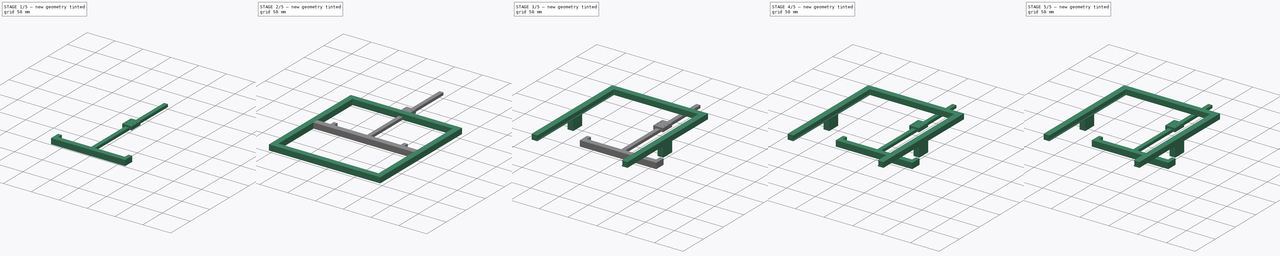
[diagram: build sequence overview — one tinted view per stage of 5, left to right]
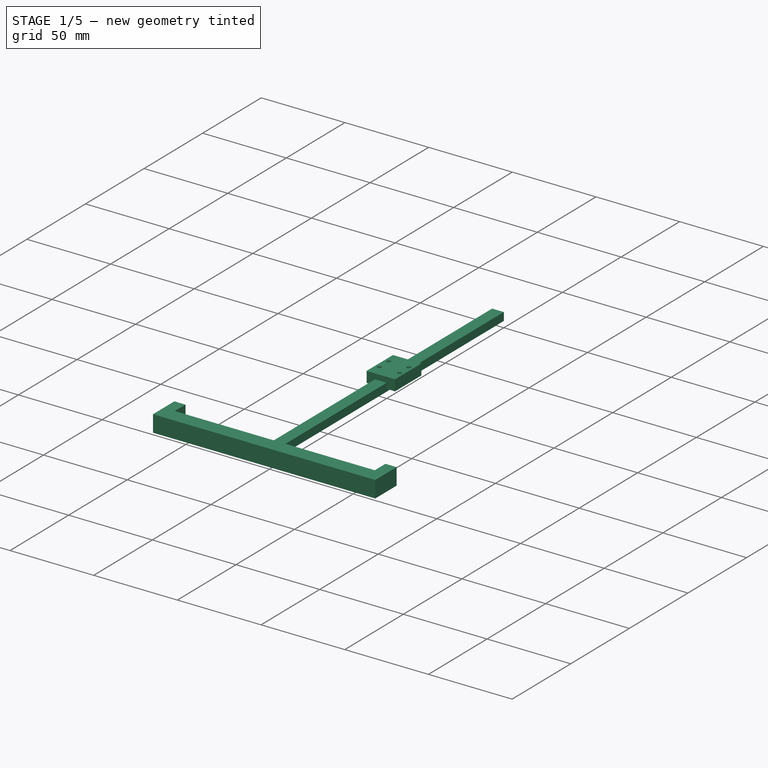
[diagram: stage 1 of 5 — iso view after this stage's code; geometry added in this stage tinted green]
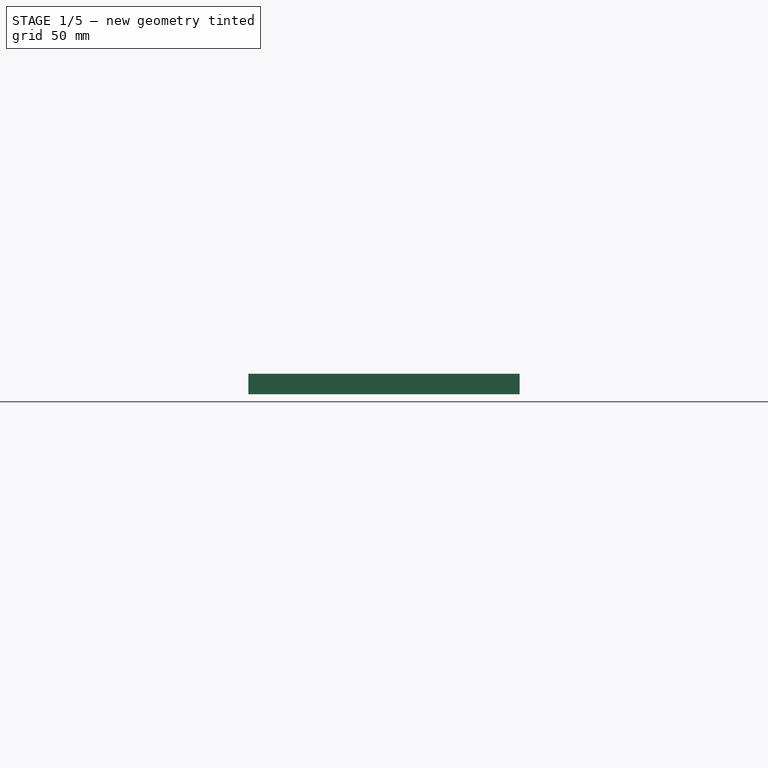
[diagram: stage 1 of 5 — front view after this stage's code; geometry added in this stage tinted green]
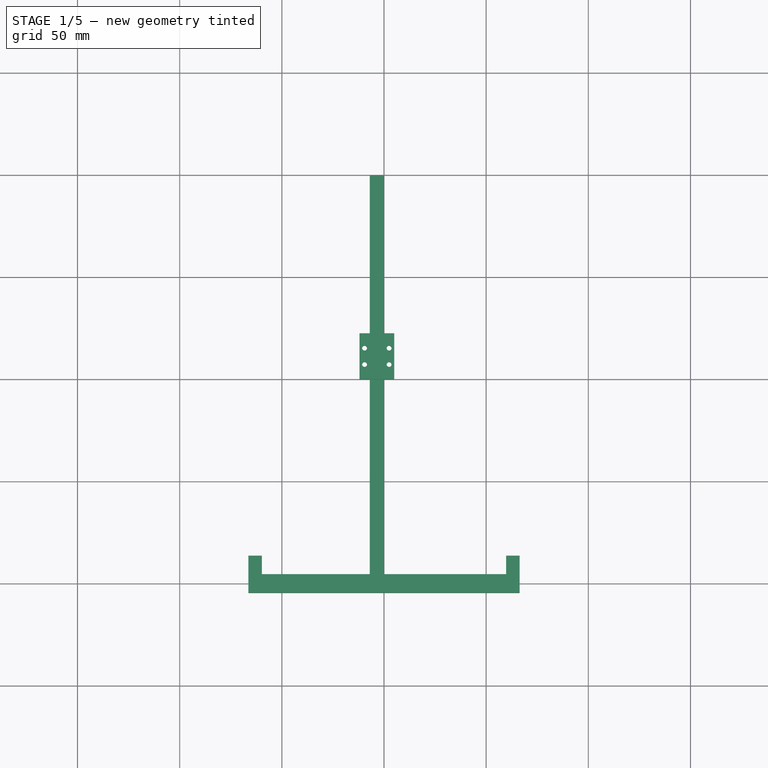
[diagram: stage 1 of 5 — top view after this stage's code; geometry added in this stage tinted green]
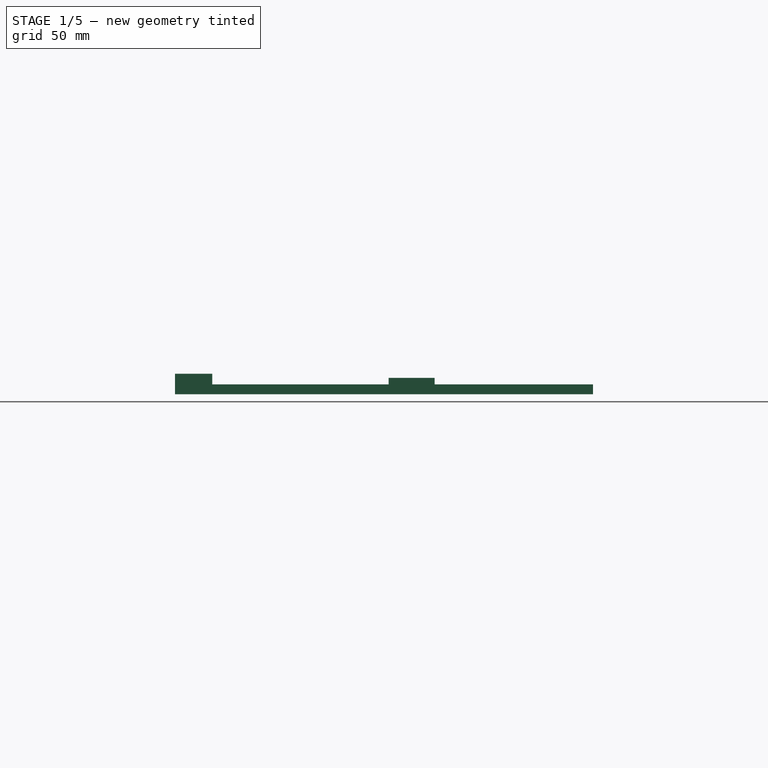
[diagram: stage 1 of 5 — right view after this stage's code; geometry added in this stage tinted green]
FCSTD DOCUMENT  (FreeCAD 0.19R24291 (Git))
Label: v1
License: All rights reserved
LicenseURL: http://en.wikipedia.org/wiki/All_rights_reserved
objects: Sketcher::SketchObject×16, PartDesign::Pad×15, PartDesign::Body×8, PartDesign::ShapeBinder×2, Spreadsheet::Sheet×1, PartDesign::Plane×1, PartDesign::Pocket×1
note: 59 computed .brp shape members not serialized (recipe doc carries the construction recipe); baked Part::Feature solids carry a one-line shape summary decoded from their .brp

FEATURE [PartDesign::Body] Body006  label="SledRightRail"
  Group = -> [Sketch012,Pad010,Sketch013,Pad011]
  Origin = -> Origin006
  Placement = pos=(74.4,-105,51) rot=(0,1,0;4.71239rad)
  Tip = -> Pad011
FEATURE [Sketcher::SketchObject] Sketch014
  FullyConstrained = true
  MapMode = 5
  Support = -> [XY_Plane007]
  expr: Constraints[9] = <<Properties>>.Rail_Width
  expr: Constraints[8] = <<Properties>>.Rail_Body_Length
  sketch-geometry (4):
    g0: LineSegment StartX=-7 StartY=200 StartZ=0 EndX=0 EndY=200 EndZ=0
    g1: LineSegment StartX=0 StartY=200 StartZ=0 EndX=0 EndY=0 EndZ=0
    g2: LineSegment StartX=0 StartY=0 StartZ=0 EndX=-7 EndY=0 EndZ=0
    g3: LineSegment StartX=-7 StartY=0 StartZ=0 EndX=-7 EndY=200 EndZ=0
  constraints (11):
    c: Coincident(g0,g1)
    c: Coincident(g1,g2)
    c: Coincident(g2,g3)
    c: Coincident(g3,g0)
    c: Horizontal(g0)
    c: Horizontal(g2)
    c: Vertical(g1)
    c: Vertical(g3)
    c: DistanceY(g1,g1) = 200
    c: DistanceX(g2,g2) = 7
    c: Coincident(g1,g-1)
FEATURE [PartDesign::Pad] Pad012
  Direction = (1,1,1)
  Length = 4.8
  Length2 = 100
  Profile = -> Sketch014
  Type = 0
  expr: Length = <<Properties>>.Rail_Height
FEATURE [Sketcher::SketchObject] Sketch015
  AttachmentOffset = pos=(0,0,-3.3) rot=(0,0,1;0rad)
  ExternalGeometry = -> [Pad012]
  FullyConstrained = true
  MapMode = 5
  Placement = pos=(0,0,1.5) rot=(0,0,1;0rad)
  Support = -> [Pad012]
  expr: .AttachmentOffset.Base.z = -<<Properties>>.Rail_Height + 1.5
  expr: Constraints[20] = <<Properties>>.Rail_Head_Screw_Width_Distance
  expr: Constraints[19] = <<Properties>>.Rail_Screw_Body_Diameter / 2
  expr: Constraints[18] = <<Properties>>.Rail_Screw_Body_Diameter / 2
  expr: Constraints[10] = <<Properties>>.Rail_Head_Length
  expr: Constraints[22] = <<Properties>>.Rail_Head_Screw_Length_Distance
  expr: Constraints[17] = <<Properties>>.Rail_Screw_Body_Diameter / 2
  expr: Constraints[9] = <<Properties>>.Rail_Head_Width
  expr: Constraints[16] = <<Properties>>.Rail_Screw_Body_Diameter / 2
  expr: Constraints[8] = <<Properties>>.Head_Offset
  sketch-geometry (13):
    g0: LineSegment StartX=-12 StartY=122.5 StartZ=0 EndX=5 EndY=122.5 EndZ=0
    g1: LineSegment StartX=5 StartY=122.5 StartZ=0 EndX=5 EndY=100 EndZ=0
    g2: LineSegment StartX=5 StartY=100 StartZ=0 EndX=-12 EndY=100 EndZ=0
    g3: LineSegment StartX=-12 StartY=100 StartZ=0 EndX=-12 EndY=122.5 EndZ=0
    g4: Circle CenterX=-9.5 CenterY=115.25 CenterZ=0 NormalX=0 NormalY=0 NormalZ=1 AngleXU=0 Radius=1.2
    g5: Circle CenterX=2.5 CenterY=115.25 CenterZ=0 NormalX=0 NormalY=0 NormalZ=1 AngleXU=0 Radius=1.2
    g6: Circle CenterX=2.5 CenterY=107.25 CenterZ=0 NormalX=0 NormalY=0 NormalZ=1 AngleXU=0 Radius=1.2
    g7: Circle CenterX=-9.5 CenterY=107.25 CenterZ=0 NormalX=0 NormalY=0 NormalZ=1 AngleXU=0 Radius=1.2
    g8: LineSegment StartX=-3.5 StartY=122.5 StartZ=0 EndX=-3.5 EndY=100 EndZ=0
    g9: GeomPoint X=-3.5 Y=0 Z=0
    g10: GeomPoint X=-3.5 Y=111.25 Z=0
    g11: GeomPoint X=-3.5 Y=115.25 Z=0
    g12: GeomPoint X=-3.5 Y=107.25 Z=0
  constraints (30):
    c: Coincident(g0,g1)
    c: Coincident(g1,g2)
    c: Coincident(g2,g3)
    c: Coincident(g3,g0)
    c: Horizontal(g0)
    c: Horizontal(g2)
    c: Vertical(g1)
    c: Vertical(g3)
    c: DistanceY(g-1,g1) = 100
    c: DistanceX(g2,g2) = 17
    c: DistanceY(g3,g3) = 22.5
    c: PointOnObject(g8,g2)
    c: Vertical(g8)
    c: Symmetric(g0,g0,g8)
    c: Symmetric(g6,g7,g8)
    c: Symmetric(g5,g4,g8)
    c: Radius(g5) = 1.2
    c: Radius(g4) = 1.2
    c: Radius(g7) = 1.2
    c: Radius(g6) = 1.2
    c: DistanceX(g4,g5) = 12
    c: DistanceX(g6,g5) = 0
    c: DistanceY(g7,g4) = 8
    c: Symmetric(g-1,g-4,g9)
    c: DistanceX(g8,g9) = 0
    c: Symmetric(g8,g8,g10)
    c: PointOnObject(g11,g8)
    c: Symmetric(g11,g12,g10)
    c: DistanceY(g12,g6) = 0
    c: DistanceY(g11,g5) = 0
FEATURE [PartDesign::Pad] Pad013
  BaseFeature = -> Pad012
  Direction = (1,1,1)
  Length = 6.5
  Length2 = 100
  Profile = -> Sketch015
  Type = 0
  expr: Length = <<Properties>>.Rail_Head_Height
FEATURE [PartDesign::Body] Body007  label="SledLeftRail"
  Group = -> [Sketch014,Pad012,Sketch015,Pad013]
  Origin = -> Origin007
  Placement = pos=(-74.4,-105,44) rot=(0,1,0;1.5708rad)
  Tip = -> Pad013
FEATURE [Sketcher::SketchObject] Sketch016
  FullyConstrained = true
  MapMode = 5
  Support = -> [XY_Plane008]
  expr: Constraints[20] = <<Properties>>.RailHolder_Width * 0.05
  expr: Constraints[18] = <<Properties>>.RailHolder_Width
  expr: Constraints[27] = <<Properties>>.RailHolder_Depth
  expr: Constraints[17] = <<Properties>>.RailHolder_Depth
  expr: Constraints[9] = <<Properties>>.RS_FPDepth
  expr: Constraints[8] = <<Properties>>.RS_FPWidth
  sketch-geometry (15):
    g0: LineSegment StartX=-100 StartY=100 StartZ=0 EndX=100 EndY=100 EndZ=0
    g1: LineSegment StartX=100 StartY=100 StartZ=0 EndX=100 EndY=-100 EndZ=0
    g2: LineSegment StartX=100 StartY=-100 StartZ=0 EndX=-100 EndY=-100 EndZ=0
    g3: LineSegment StartX=-100 StartY=-100 StartZ=0 EndX=-100 EndY=100 EndZ=0
    g4: LineSegment StartX=66.4 StartY=4.55 StartZ=0 EndX=66.4 EndY=-4.55 EndZ=0
    g5: LineSegment StartX=66.4 StartY=-4.55 StartZ=0 EndX=-66.4 EndY=-4.55 EndZ=0
    g6: LineSegment StartX=-66.4 StartY=-4.55 StartZ=0 EndX=-66.4 EndY=4.55 EndZ=0
    g7: LineSegment StartX=-59.76 StartY=4.55 StartZ=0 EndX=59.76 EndY=4.55 EndZ=0
    g8: LineSegment StartX=-59.76 StartY=4.55 StartZ=0 EndX=-59.76 EndY=13.65 EndZ=0
    g9: LineSegment StartX=-59.76 StartY=13.65 StartZ=0 EndX=-66.4 EndY=13.65 EndZ=0
    g10: LineSegment StartX=-66.4 StartY=13.65 StartZ=0 EndX=-66.4 EndY=4.55 EndZ=0
    g11: LineSegment StartX=66.4 StartY=4.55 StartZ=0 EndX=66.4 EndY=13.65 EndZ=0
    g12: LineSegment StartX=66.4 StartY=13.65 StartZ=0 EndX=59.76 EndY=13.65 EndZ=0
    g13: LineSegment StartX=59.76 StartY=13.65 StartZ=0 EndX=59.76 EndY=4.55 EndZ=0
    g14: LineSegment StartX=59.76 StartY=4.55 StartZ=0 EndX=66.4 EndY=4.55 EndZ=0
  constraints (40):
    c: Coincident(g0,g1)
    c: Coincident(g1,g2)
    c: Coincident(g2,g3)
    c: Coincident(g3,g0)
    c: Horizontal(g0)
    c: Horizontal(g2)
    c: Vertical(g1)
    c: Vertical(g3)
    c: DistanceX(g0,g0) = 200
    c: DistanceY(g1,g1) = 200
    c: Symmetric(g0,g2,g-1)
    c: Coincident(g4,g5)
    c: Coincident(g5,g6)
    c: Horizontal(g5)
    c: Vertical(g4)
    c: Vertical(g6)
    c: Symmetric(g6,g4,g-1)
    c: DistanceY(g6,g6) = 9.1
    c: DistanceX(g6,g4) = 132.8
    c: DistanceY(g7,g6) = 0
    c: DistanceX(g6,g7) = 6.64
    c: Symmetric(g7,g7,g-2)
    c: Coincident(g8,g9)
    c: Coincident(g9,g10)
    c: Horizontal(g9)
    c: Vertical(g8)
    c: Vertical(g10)
    c: DistanceY(g10,g10) = 9.1
    c: Coincident(g7,g8)
    c: Coincident(g6,g10)
    c: Coincident(g11,g12)
    c: Coincident(g12,g13)
    c: Horizontal(g12)
    c: Vertical(g13)
    c: Coincident(g4,g11)
    c: Coincident(g7,g13)
    c: Symmetric(g11,g9,g-2)
    c: Coincident(g14,g7)
    c: Coincident(g14,g4)
    c: Horizontal(g14)
FEATURE [PartDesign::Pad] Pad014
  Direction = (1,1,1)
  Length = 10
  Length2 = 100
  Profile = -> Sketch016
  Type = 0
  expr: Length = <<Properties>>.RailHolder_Height
FEATURE [PartDesign::Body] Body008
  Group = -> [Sketch016,Pad014]
  Origin = -> Origin008
  Placement = pos=(0,0,45) rot=(0,0,1;0rad)
  Tip = -> Pad014
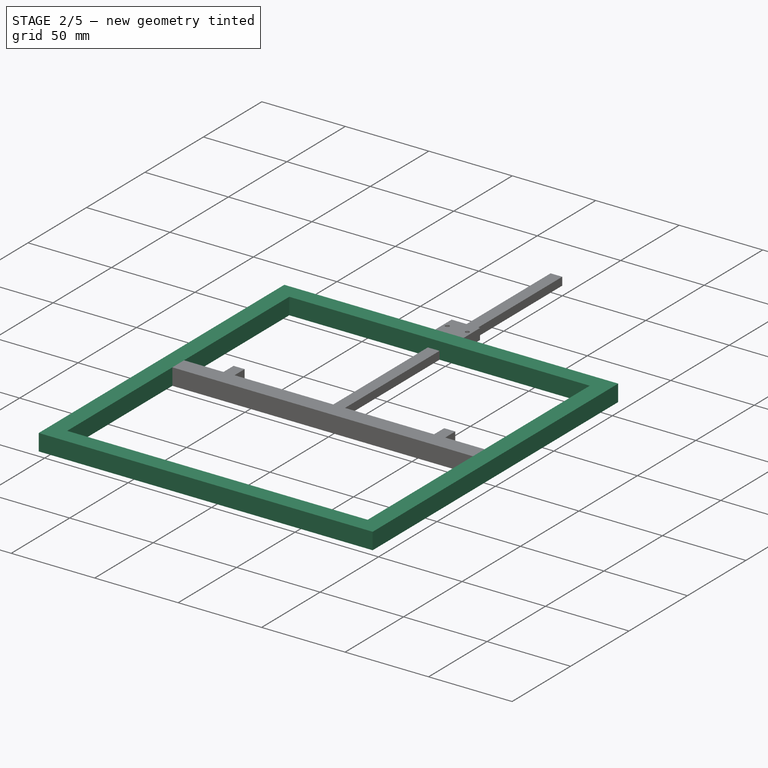
[diagram: stage 2 of 5 — iso view after this stage's code; geometry added in this stage tinted green]
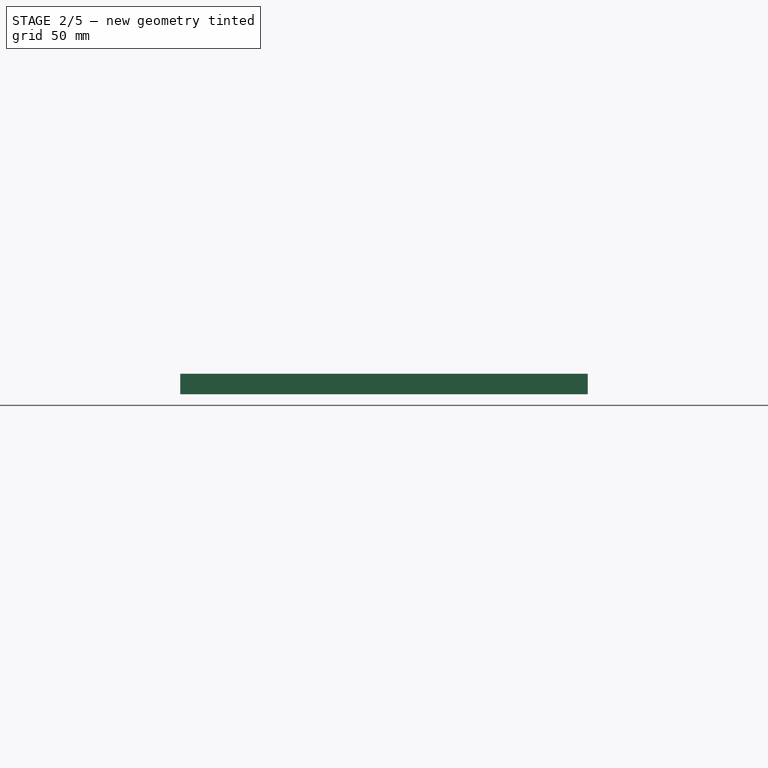
[diagram: stage 2 of 5 — front view after this stage's code; geometry added in this stage tinted green]
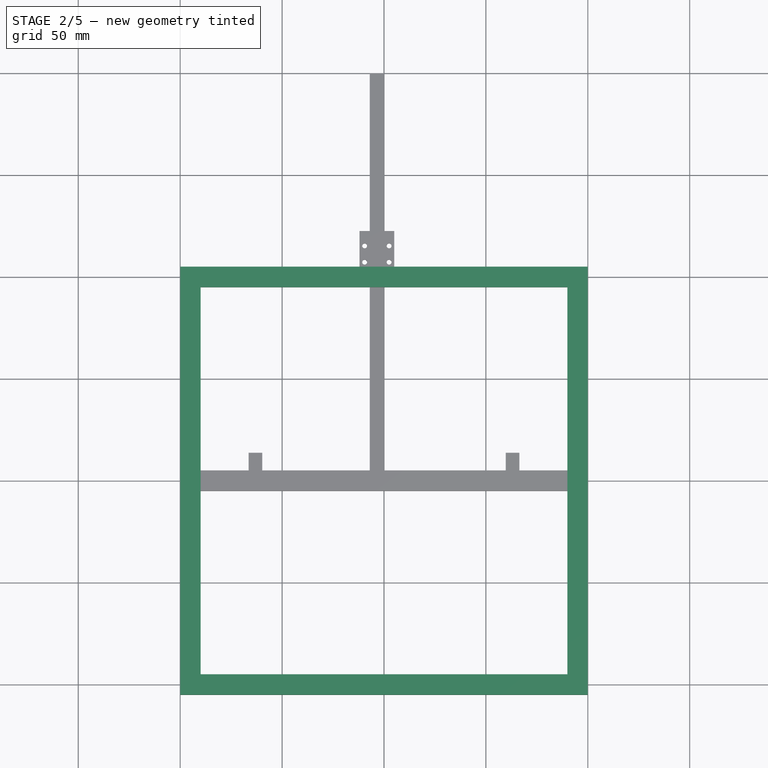
[diagram: stage 2 of 5 — top view after this stage's code; geometry added in this stage tinted green]
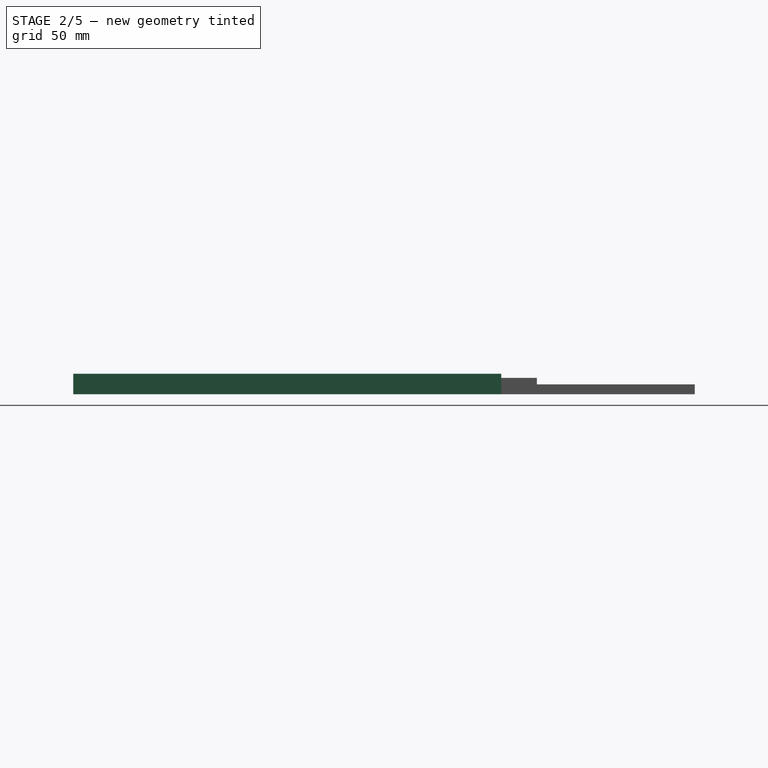
[diagram: stage 2 of 5 — right view after this stage's code; geometry added in this stage tinted green]
FEATURE [PartDesign::Body] Body002  label="LeftSideVerticalRail"
  Group = -> [Sketch005,Pad003,Sketch004,Pad004]
  Origin = -> Origin002
  Placement = pos=(-91.2,3.5,10) rot=(0.57735,0.57735,0.57735;2.0944rad)
  Tip = -> Pad004
FEATURE [Sketcher::SketchObject] Sketch
  FullyConstrained = true
  MapMode = 5
  Support = -> [XY_Plane]
  expr: Constraints[29] = <<Properties>>.RS_Thickness
  expr: Constraints[31] = <<Properties>>.RS_Thickness
  expr: Constraints[28] = <<Properties>>.RS_Thickness
  expr: Constraints[10] = (<<Properties>>.RS_FPDepth - <<Properties>>.RS_Thickness * 2) / 2
  expr: Constraints[0] = <<Properties>>.RS_FPWidth - <<Properties>>.RS_Thickness * 2
  sketch-geometry (12):
    g0: LineSegment StartX=-90 StartY=5 StartZ=0 EndX=90 EndY=5 EndZ=0
    g1: LineSegment StartX=90 StartY=5 StartZ=0 EndX=90 EndY=95 EndZ=0
    g2: LineSegment StartX=90 StartY=95 StartZ=0 EndX=-90 EndY=95 EndZ=0
    g3: LineSegment StartX=-90 StartY=95 StartZ=0 EndX=-90 EndY=5 EndZ=0
    g4: LineSegment StartX=-90 StartY=-5 StartZ=0 EndX=90 EndY=-5 EndZ=0
    g5: LineSegment StartX=90 StartY=-5 StartZ=0 EndX=90 EndY=-95 EndZ=0
    g6: LineSegment StartX=90 StartY=-95 StartZ=0 EndX=-90 EndY=-95 EndZ=0
    g7: LineSegment StartX=-90 StartY=-95 StartZ=0 EndX=-90 EndY=-5 EndZ=0
    g8: LineSegment StartX=-100 StartY=105 StartZ=0 EndX=100 EndY=105 EndZ=0
    g9: LineSegment StartX=100 StartY=105 StartZ=0 EndX=100 EndY=-105 EndZ=0
    g10: LineSegment StartX=100 StartY=-105 StartZ=0 EndX=-100 EndY=-105 EndZ=0
    g11: LineSegment StartX=-100 StartY=-105 StartZ=0 EndX=-100 EndY=105 EndZ=0
  constraints (33):
    c: DistanceX(g0,g0) = 180
    c: Symmetric(g0,g0,g-2)
    c: DistanceX(g0,g4) = 0
    c: Coincident(g0,g1)
    c: Coincident(g1,g2)
    c: Coincident(g2,g3)
    c: Coincident(g3,g0)
    c: Horizontal(g2)
    c: Vertical(g1)
    c: Vertical(g3)
    c: DistanceY(g1,g1) = 90
    c: Coincident(g4,g5)
    c: Coincident(g5,g6)
    c: Coincident(g6,g7)
    c: Coincident(g7,g4)
    c: Horizontal(g4)
    c: Horizontal(g6)
    c: Vertical(g7)
    c: Symmetric(g5,g1,g-1)
    c: DistanceY(g5,g1) = 190
    c: Coincident(g8,g9)
    c: Coincident(g9,g10)
    c: Coincident(g10,g11)
    c: Coincident(g11,g8)
    c: Horizontal(g8)
    c: Horizontal(g10)
    c: Vertical(g9)
    c: Vertical(g11)
    c: DistanceY(g1,g8) = 10
    c: DistanceX(g1,g8) = 10
    c: Symmetric(g10,g8,g-1)
    c: DistanceY(g4,g0) = 10
    c: Symmetric(g4,g0,g-1)
FEATURE [PartDesign::Pad] Pad
  Direction = (1,1,1)
  Length = 10
  Length2 = 100
  Profile = -> Sketch
  Type = 0
  expr: Length = <<Properties>>.RS_FPHeight
FEATURE [PartDesign::Body] Body005  label="Sled"
  Group = -> [DatumPlane,ReferencePad005,ReferencePad005001,Sketch009,Pad008,Sketch010,Pad009,Sketch011,Pocket]
  Origin = -> Origin005
  Tip = -> Pocket
FEATURE [Sketcher::SketchObject] Sketch012
  FullyConstrained = true
  MapMode = 5
  Support = -> [XY_Plane006]
  expr: Constraints[8] = <<Properties>>.Rail_Body_Length
  expr: Constraints[9] = <<Properties>>.Rail_Width
  sketch-geometry (4):
    g0: LineSegment StartX=-7 StartY=200 StartZ=0 EndX=0 EndY=200 EndZ=0
    g1: LineSegment StartX=0 StartY=200 StartZ=0 EndX=0 EndY=0 EndZ=0
    g2: LineSegment StartX=0 StartY=0 StartZ=0 EndX=-7 EndY=0 EndZ=0
    g3: LineSegment StartX=-7 StartY=0 StartZ=0 EndX=-7 EndY=200 EndZ=0
  constraints (11):
    c: Coincident(g0,g1)
    c: Coincident(g1,g2)
    c: Coincident(g2,g3)
    c: Coincident(g3,g0)
    c: Horizontal(g0)
    c: Horizontal(g2)
    c: Vertical(g1)
    c: Vertical(g3)
    c: DistanceY(g1,g1) = 200
    c: DistanceX(g2,g2) = 7
    c: Coincident(g1,g-1)
FEATURE [PartDesign::Pad] Pad010
  Direction = (1,1,1)
  Length = 4.8
  Length2 = 100
  Profile = -> Sketch012
  Type = 0
  expr: Length = <<Properties>>.Rail_Height
FEATURE [Sketcher::SketchObject] Sketch013
  AttachmentOffset = pos=(0,0,-3.3) rot=(0,0,1;0rad)
  ExternalGeometry = -> [Pad010]
  FullyConstrained = true
  MapMode = 5
  Placement = pos=(0,0,1.5) rot=(0,0,1;0rad)
  Support = -> [Pad010]
  expr: Constraints[8] = <<Properties>>.Head_Offset
  expr: Constraints[16] = <<Properties>>.Rail_Screw_Body_Diameter / 2
  expr: Constraints[9] = <<Properties>>.Rail_Head_Width
  expr: Constraints[17] = <<Properties>>.Rail_Screw_Body_Diameter / 2
  expr: Constraints[22] = <<Properties>>.Rail_Head_Screw_Length_Distance
  expr: Constraints[10] = <<Properties>>.Rail_Head_Length
  expr: Constraints[18] = <<Properties>>.Rail_Screw_Body_Diameter / 2
  expr: Constraints[19] = <<Properties>>.Rail_Screw_Body_Diameter / 2
  expr: Constraints[20] = <<Properties>>.Rail_Head_Screw_Width_Distance
  expr: .AttachmentOffset.Base.z = -<<Properties>>.Rail_Height + 1.5
  sketch-geometry (13):
    g0: LineSegment StartX=-12 StartY=122.5 StartZ=0 EndX=5 EndY=122.5 EndZ=0
    g1: LineSegment StartX=5 StartY=122.5 StartZ=0 EndX=5 EndY=100 EndZ=0
    g2: LineSegment StartX=5 StartY=100 StartZ=0 EndX=-12 EndY=100 EndZ=0
    g3: LineSegment StartX=-12 StartY=100 StartZ=0 EndX=-12 EndY=122.5 EndZ=0
    g4: Circle CenterX=-9.5 CenterY=115.25 CenterZ=0 NormalX=0 NormalY=0 NormalZ=1 AngleXU=0 Radius=1.2
    g5: Circle CenterX=2.5 CenterY=115.25 CenterZ=0 NormalX=0 NormalY=0 NormalZ=1 AngleXU=0 Radius=1.2
    g6: Circle CenterX=2.5 CenterY=107.25 CenterZ=0 NormalX=0 NormalY=0 NormalZ=1 AngleXU=0 Radius=1.2
    g7: Circle CenterX=-9.5 CenterY=107.25 CenterZ=0 NormalX=0 NormalY=0 NormalZ=1 AngleXU=0 Radius=1.2
    g8: LineSegment StartX=-3.5 StartY=122.5 StartZ=0 EndX=-3.5 EndY=100 EndZ=0
    g9: GeomPoint X=-3.5 Y=0 Z=0
    g10: GeomPoint X=-3.5 Y=111.25 Z=0
    g11: GeomPoint X=-3.5 Y=115.25 Z=0
    g12: GeomPoint X=-3.5 Y=107.25 Z=0
  constraints (30):
    c: Coincident(g0,g1)
    c: Coincident(g1,g2)
    c: Coincident(g2,g3)
    c: Coincident(g3,g0)
    c: Horizontal(g0)
    c: Horizontal(g2)
    c: Vertical(g1)
    c: Vertical(g3)
    c: DistanceY(g-1,g1) = 100
    c: DistanceX(g2,g2) = 17
    c: DistanceY(g3,g3) = 22.5
    c: PointOnObject(g8,g2)
    c: Vertical(g8)
    c: Symmetric(g0,g0,g8)
    c: Symmetric(g6,g7,g8)
    c: Symmetric(g5,g4,g8)
    c: Radius(g5) = 1.2
    c: Radius(g4) = 1.2
    c: Radius(g7) = 1.2
    c: Radius(g6) = 1.2
    c: DistanceX(g4,g5) = 12
    c: DistanceX(g6,g5) = 0
    c: DistanceY(g7,g4) = 8
    c: Symmetric(g-1,g-4,g9)
    c: DistanceX(g8,g9) = 0
    c: Symmetric(g8,g8,g10)
    c: PointOnObject(g11,g8)
    c: Symmetric(g11,g12,g10)
    c: DistanceY(g12,g6) = 0
    c: DistanceY(g11,g5) = 0
FEATURE [PartDesign::Pad] Pad011
  BaseFeature = -> Pad010
  Direction = (1,1,1)
  Length = 6.5
  Length2 = 100
  Profile = -> Sketch013
  Type = 0
  expr: Length = <<Properties>>.Rail_Head_Height
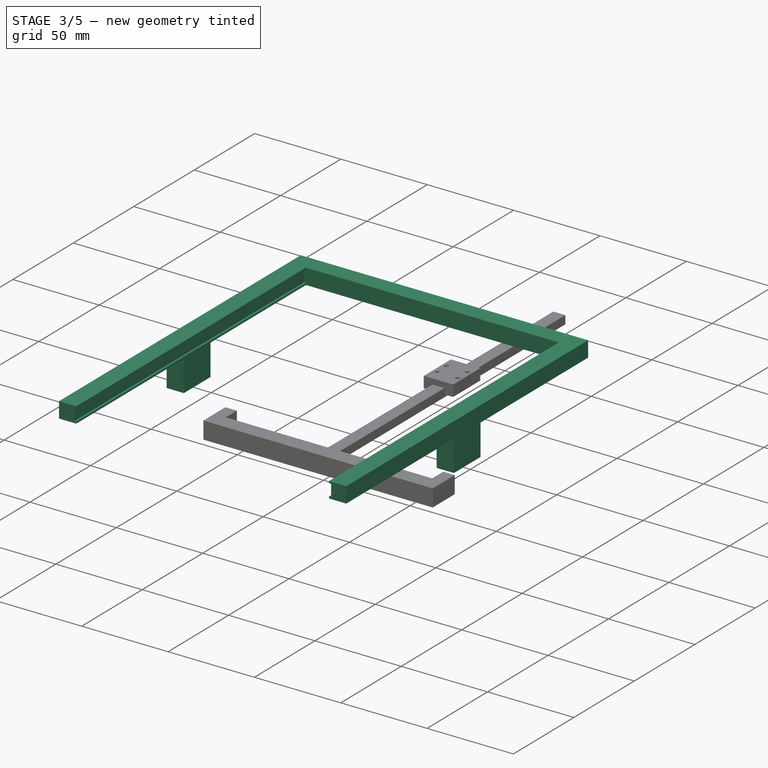
[diagram: stage 3 of 5 — iso view after this stage's code; geometry added in this stage tinted green]
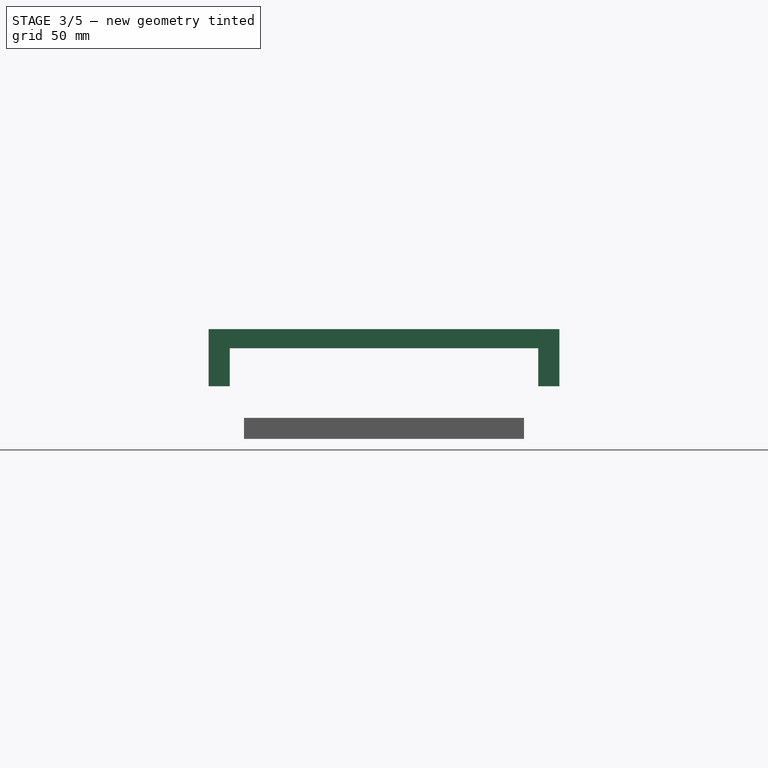
[diagram: stage 3 of 5 — front view after this stage's code; geometry added in this stage tinted green]
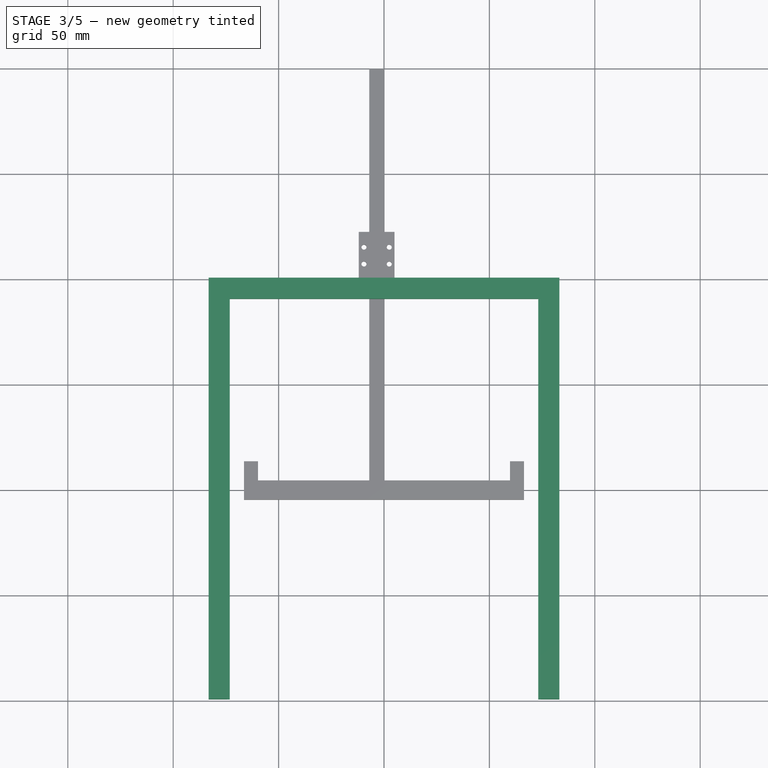
[diagram: stage 3 of 5 — top view after this stage's code; geometry added in this stage tinted green]
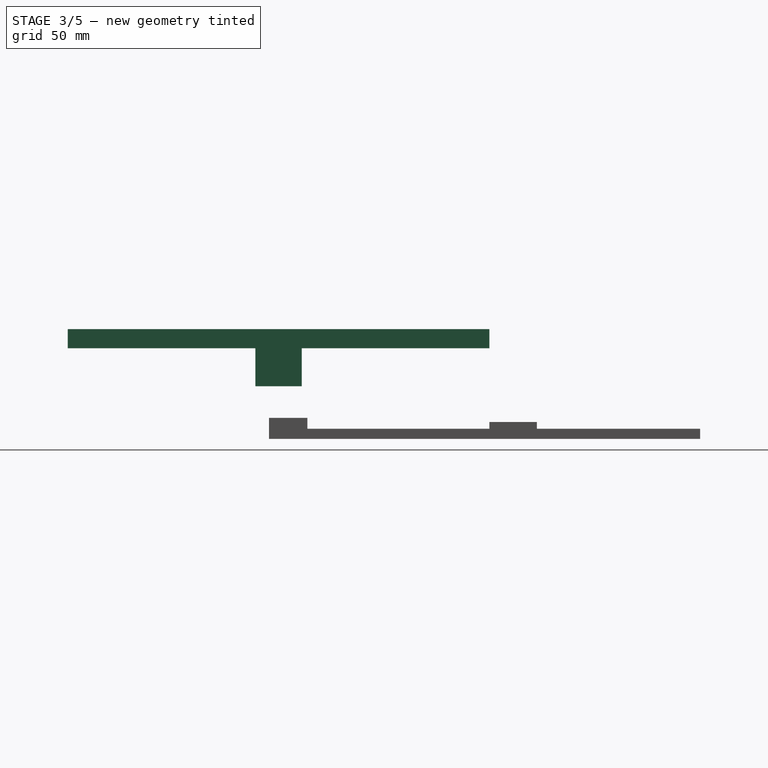
[diagram: stage 3 of 5 — right view after this stage's code; geometry added in this stage tinted green]
FEATURE [Sketcher::SketchObject] Sketch006
  ExternalGeometry = -> [Pad]
  FullyConstrained = true
  MapMode = 5
  Placement = pos=(0,0,10) rot=(0,0,1;0rad)
  Support = -> [Pad]
  expr: Constraints[21] = <<Properties>>.Rail_Width * 2
  expr: Constraints[20] = <<Properties>>.Rail_Head_To_Ground_Distance * 0.8
  expr: Constraints[12] = <<Properties>>.Rail_Width
  sketch-geometry (16):
    g0: LineSegment StartX=-100 StartY=7 StartZ=0 EndX=-90 EndY=7 EndZ=0
    g1: LineSegment StartX=-90 StartY=-7 StartZ=0 EndX=-100 EndY=-7 EndZ=0
    g2: LineSegment StartX=-100 StartY=-7 StartZ=0 EndX=-100 EndY=7 EndZ=0
    g3: LineSegment StartX=-90 StartY=7 StartZ=0 EndX=-90 EndY=3.5 EndZ=0
    g4: LineSegment StartX=-90 StartY=-7 StartZ=0 EndX=-90 EndY=-3.5 EndZ=0
    g5: LineSegment StartX=-91.2 StartY=3.5 StartZ=0 EndX=-90 EndY=3.5 EndZ=0
    g6: LineSegment StartX=-90 StartY=-3.5 StartZ=0 EndX=-91.2 EndY=-3.5 EndZ=0
    g7: LineSegment StartX=-91.2 StartY=-3.5 StartZ=0 EndX=-91.2 EndY=3.5 EndZ=0
    g8: LineSegment StartX=90 StartY=7 StartZ=0 EndX=100 EndY=7 EndZ=0
    g9: LineSegment StartX=100 StartY=7 StartZ=0 EndX=100 EndY=-7 EndZ=0
    g10: LineSegment StartX=100 StartY=-7 StartZ=0 EndX=90 EndY=-7 EndZ=0
    g11: LineSegment StartX=90 StartY=3.5 StartZ=0 EndX=91.2 EndY=3.5 EndZ=0
    g12: LineSegment StartX=91.2 StartY=3.5 StartZ=0 EndX=91.2 EndY=-3.5 EndZ=0
    g13: LineSegment StartX=91.2 StartY=-3.5 StartZ=0 EndX=90 EndY=-3.5 EndZ=0
    g14: LineSegment StartX=90 StartY=7 StartZ=0 EndX=90 EndY=3.5 EndZ=0
    g15: LineSegment StartX=90 StartY=-3.5 StartZ=0 EndX=90 EndY=-7 EndZ=0
  constraints (40):
    c: Coincident(g1,g2)
    c: Coincident(g2,g0)
    c: Horizontal(g0)
    c: Horizontal(g1)
    c: Vertical(g2)
    c: PointOnObject(g0,g-5)
    c: PointOnObject(g1,g-4)
    c: Symmetric(g0,g1,g-1)
    c: Coincident(g3,g0)
    c: Coincident(g4,g1)
    c: Vertical(g3)
    c: Symmetric(g3,g4,g-1)
    c: DistanceY(g4,g3) = 7
    c: Coincident(g6,g7)
    c: Coincident(g7,g5)
    c: Horizontal(g5)
    c: Horizontal(g6)
    c: Vertical(g7)
    c: Coincident(g5,g3)
    c: Coincident(g6,g4)
    c: DistanceX(g5,g5) = 1.2
    c: DistanceY(g1,g0) = 14
    c: Coincident(g8,g9)
    c: Coincident(g9,g10)
    c: Horizontal(g10)
    c: Vertical(g9)
    c: Coincident(g11,g12)
    c: Coincident(g12,g13)
    c: Horizontal(g13)
    c: Vertical(g12)
    c: Coincident(g14,g8)
    c: Coincident(g14,g11)
    c: Coincident(g15,g13)
    c: Coincident(g15,g10)
    c: Symmetric(g10,g1,g-2)
    c: Symmetric(g8,g0,g-2)
    c: Symmetric(g8,g0,g-2)
    c: Symmetric(g11,g3,g-2)
    c: Symmetric(g11,g5,g-2)
    c: Symmetric(g11,g13,g-1)
FEATURE [PartDesign::Pad] Pad005
  BaseFeature = -> Pad
  Direction = (1,1,1)
  Length = 33
  Length2 = 100
  Profile = -> Sketch006
  Type = 0
  expr: Length = <<Properties>>.RS_Holding_Height
FEATURE [PartDesign::Body] Body003  label="RightSideVerticalRail"
  Group = -> [Sketch007,Pad006,Sketch008,Pad007]
  Origin = -> Origin003
  Placement = pos=(91.2,-3.5,10) rot=(0.57735,-0.57735,-0.57735;2.0944rad)
  Tip = -> Pad007
FEATURE [PartDesign::ShapeBinder] ReferencePad005
  Placement = pos=(0,0,33) rot=(0,0,1;0rad)
  Support = -> [Pad005]
  TraceSupport = false
FEATURE [PartDesign::ShapeBinder] ReferencePad005001
  Placement = pos=(0,0,33) rot=(0,0,1;0rad)
  Support = -> [Pad005]
  TraceSupport = false
FEATURE [PartDesign::Plane] DatumPlane
  Length = 236.486
  MapMode = 45
  Placement = pos=(-1.38e-14,2e-16,43) rot=(0,0,1;1.5708rad)
  ResizeMode = 0
  Support = -> [ReferencePad005,ReferencePad005001]
  Width = 202.886
FEATURE [Sketcher::SketchObject] Sketch009
  ExternalGeometry = -> [ReferencePad005,ReferencePad005001]
  FullyConstrained = true
  MapMode = 5
  Placement = pos=(-1.38e-14,2e-16,43) rot=(0,0,1;1.5708rad)
  Support = -> [DatumPlane]
  expr: Constraints[18] = <<Properties>>.Rail_Body_Height
  expr: Constraints[44] = <<Properties>>.Sled_Base_Depth
  expr: Constraints[26] = <<Properties>>.Sled_V_Rail_Connector_Depth
  expr: Constraints[28] = <<Properties>>.Sled_V_Rail_Connector_Width
  expr: .Constraints.BeamThickness = <<Properties>>.Sled_Thickness
  expr: Constraints[61] = <<Properties>>.Sled_Thickness
  sketch-geometry (24):
    g0: LineSegment StartX=-3.5 StartY=91.2 StartZ=0 EndX=3.5 EndY=91.2 EndZ=0
    g1: LineSegment StartX=3.5 StartY=91.2 StartZ=0 EndX=3.5 EndY=83.2 EndZ=0
    g2: LineSegment StartX=3.5 StartY=83.2 StartZ=0 EndX=-3.5 EndY=83.2 EndZ=0
    g3: LineSegment StartX=-3.5 StartY=83.2 StartZ=0 EndX=-3.5 EndY=91.2 EndZ=0
    g4: LineSegment StartX=-3.5 StartY=-83.2 StartZ=0 EndX=3.5 EndY=-83.2 EndZ=0
    g5: LineSegment StartX=3.5 StartY=-83.2 StartZ=0 EndX=3.5 EndY=-91.2 EndZ=0
    g6: LineSegment StartX=3.5 StartY=-91.2 StartZ=0 EndX=-3.5 EndY=-91.2 EndZ=0
    g7: LineSegment StartX=-3.5 StartY=-91.2 StartZ=0 EndX=-3.5 EndY=-83.2 EndZ=0
    g8: LineSegment StartX=-11 StartY=83.2 StartZ=0 EndX=11 EndY=83.2 EndZ=0
    g9: LineSegment StartX=11 StartY=83.2 StartZ=0 EndX=11 EndY=78.2 EndZ=0
    g10: LineSegment StartX=11 StartY=78.2 StartZ=0 EndX=-11 EndY=78.2 EndZ=0
    g11: LineSegment StartX=-11 StartY=78.2 StartZ=0 EndX=-11 EndY=83.2 EndZ=0
    g12: LineSegment StartX=-11 StartY=-78.2 StartZ=0 EndX=11 EndY=-78.2 EndZ=0
    g13: LineSegment StartX=11 StartY=-78.2 StartZ=0 EndX=11 EndY=-83.2 EndZ=0
    g14: LineSegment StartX=11 StartY=-83.2 StartZ=0 EndX=-11 EndY=-83.2 EndZ=0
    g15: LineSegment StartX=-11 StartY=-83.2 StartZ=0 EndX=-11 EndY=-78.2 EndZ=0
    g16: LineSegment StartX=-100 StartY=83.2 StartZ=0 EndX=100 EndY=83.2 EndZ=0
    g17: LineSegment StartX=100 StartY=83.2 StartZ=0 EndX=100 EndY=-83.2 EndZ=0
    g18: LineSegment StartX=100 StartY=-83.2 StartZ=0 EndX=-100 EndY=-83.2 EndZ=0
    g19: LineSegment StartX=-100 StartY=73.2 StartZ=0 EndX=90 EndY=73.2 EndZ=0
    g20: LineSegment StartX=90 StartY=73.2 StartZ=0 EndX=90 EndY=-73.2 EndZ=0
    g21: LineSegment StartX=90 StartY=-73.2 StartZ=0 EndX=-100 EndY=-73.2 EndZ=0
    g22: LineSegment StartX=-100 StartY=83.2 StartZ=0 EndX=-100 EndY=73.2 EndZ=0
    g23: LineSegment StartX=-100 StartY=-83.2 StartZ=0 EndX=-100 EndY=-73.2 EndZ=0
  constraints (62):
    c: Coincident(g0,g1)
    c: Coincident(g1,g2)
    c: Coincident(g2,g3)
    c: Coincident(g3,g0)
    c: Horizontal(g2)
    c: Vertical(g1)
    c: Vertical(g3)
    c: Coincident(g0,g-4)
    c: Coincident(g4,g5)
    c: Coincident(g5,g6)
    c: Coincident(g6,g7)
    c: Coincident(g7,g4)
    c: Horizontal(g4)
    c: Vertical(g7)
    c: Coincident(g5,g-3)
    c: Coincident(g6,g-3)
    c: Symmetric(g4,g1,g-1)
    c: Coincident(g0,g-4)
    c: DistanceY(g5,g5) = 8
    c: Coincident(g8,g9)
    c: Coincident(g9,g10)
    c: Coincident(g10,g11)
    c: Coincident(g11,g8)
    c: Horizontal(g10)
    c: Vertical(g9)
    c: Vertical(g11)
    c: DistanceX(g8,g8) = 22
    c: Symmetric(g8,g8,g-2)
    c: DistanceY(g9,g9) = 5
    c: PointOnObject(g2,g8)
    c: Coincident(g12,g13)
    c: Coincident(g13,g14)
    c: Coincident(g14,g15)
    c: Coincident(g15,g12)
    c: Horizontal(g12)
    c: Horizontal(g14)
    c: Vertical(g13)
    c: Vertical(g15)
    c: Symmetric(g8,g13,g-1)
    c: Symmetric(g10,g12,g-1)
    c: Coincident(g16,g17)
    c: Coincident(g17,g18)
    c: Horizontal(g18)
    c: Vertical(g17)
    c: DistanceX(g18,g18) = 200
    c: Symmetric(g16,g16,g-2)
    c: PointOnObject(g13,g18)
    c: PointOnObject(g8,g16)
    c: DistanceX(g18,g16) = 0
    c: Coincident(g19,g20)
    c: Coincident(g20,g21)
    c: Horizontal(g19)
    c: Horizontal(g21)
    c: Vertical(g20)
    c: Coincident(g22,g16)
    c: Coincident(g22,g19)
    c: Vertical(g22)
    c: Coincident(g23,g18)
    c: Coincident(g23,g21)
    c: Symmetric(g19,g21,g-1)
    c: DistanceY(g23,g23) = 10  'BeamThickness'
    c: DistanceX(g20,g17) = 10
FEATURE [PartDesign::Pad] Pad008
  Direction = (1,1,1)
  Length = 9.1
  Length2 = 100
  Placement = pos=(-1.38e-14,2e-16,43) rot=(0,0,1;1.5708rad)
  Profile = -> Sketch009
  Type = 0
  expr: Length = <<Properties>>.Sled_Thickness_Height
FEATURE [Sketcher::SketchObject] Sketch010
  ExternalGeometry = -> [Pad008]
  FullyConstrained = true
  MapMode = 5
  Placement = pos=(-1.38e-14,2e-16,43) rot=(0.707107,0.707107,0;3.14159rad)
  Support = -> [Pad008]
  expr: Constraints[9] = <<Properties>>.Sled_V_Rail_Connector_Depth
  sketch-geometry (8):
    g0: LineSegment StartX=-11 StartY=83.2 StartZ=0 EndX=11 EndY=83.2 EndZ=0
    g1: LineSegment StartX=11 StartY=83.2 StartZ=0 EndX=11 EndY=73.2 EndZ=0
    g2: LineSegment StartX=11 StartY=73.2 StartZ=0 EndX=-11 EndY=73.2 EndZ=0
    g3: LineSegment StartX=-11 StartY=73.2 StartZ=0 EndX=-11 EndY=83.2 EndZ=0
    g4: LineSegment StartX=-11 StartY=-73.2 StartZ=0 EndX=11 EndY=-73.2 EndZ=0
    g5: LineSegment StartX=11 StartY=-73.2 StartZ=0 EndX=11 EndY=-83.2 EndZ=0
    g6: LineSegment StartX=11 StartY=-83.2 StartZ=0 EndX=-11 EndY=-83.2 EndZ=0
    g7: LineSegment StartX=-11 StartY=-83.2 StartZ=0 EndX=-11 EndY=-73.2 EndZ=0
  constraints (21):
    c: Coincident(g0,g1)
    c: Coincident(g1,g2)
    c: Coincident(g2,g3)
    c: Coincident(g3,g0)
    c: Horizontal(g0)
    c: Vertical(g1)
    c: Vertical(g3)
    c: PointOnObject(g0,g-3)
    c: PointOnObject(g1,g-4)
    c: DistanceX(g2,g2) = 22
    c: Symmetric(g1,g2,g-2)
    c: Coincident(g4,g5)
    c: Coincident(g5,g6)
    c: Coincident(g6,g7)
    c: Coincident(g7,g4)
    c: Horizontal(g4)
    c: Horizontal(g6)
    c: Vertical(g5)
    c: Vertical(g7)
    c: Symmetric(g0,g6,g-1)
    c: Symmetric(g4,g1,g-1)
FEATURE [PartDesign::Pad] Pad009
  BaseFeature = -> Pad008
  Direction = (1,1,1)
  Length = 18
  Length2 = 100
  Placement = pos=(-1.38e-14,2e-16,43) rot=(0,0,1;1.5708rad)
  Profile = -> Sketch010
  Type = 0
  expr: Length = <<Properties>>.Sled_V_Rail_Connector_Height
FEATURE [Sketcher::SketchObject] Sketch011
  ExternalGeometry = -> [Pad009]
  FullyConstrained = true
  MapMode = 5
  Placement = pos=(-5.82e-14,-100,43) rot=(1,0,0;1.5708rad)
  Support = -> [Pad009]
  expr: Constraints[8] = <<Properties>>.Sled_Depth_Rail_Inlay
  expr: Constraints[11] = <<Properties>>.Rail_Width
  sketch-geometry (9):
    g0: LineSegment StartX=-74.4 StartY=8.05 StartZ=0 EndX=-73.2 EndY=8.05 EndZ=0
    g1: LineSegment StartX=-73.2 StartY=8.05 StartZ=0 EndX=-73.2 EndY=1.05 EndZ=0
    g2: LineSegment StartX=-73.2 StartY=1.05 StartZ=0 EndX=-74.4 EndY=1.05 EndZ=0
    g3: LineSegment StartX=-74.4 StartY=1.05 StartZ=0 EndX=-74.4 EndY=8.05 EndZ=0
    g4: GeomPoint X=-73.2 Y=4.55 Z=0
    g5: LineSegment StartX=73.2 StartY=8.05 StartZ=0 EndX=74.4 EndY=8.05 EndZ=0
    g6: LineSegment StartX=74.4 StartY=8.05 StartZ=0 EndX=74.4 EndY=1.05 EndZ=0
    g7: LineSegment StartX=74.4 StartY=1.05 StartZ=0 EndX=73.2 EndY=1.05 EndZ=0
    g8: LineSegment StartX=73.2 StartY=1.05 StartZ=0 EndX=73.2 EndY=8.05 EndZ=0
  constraints (22):
    c: Coincident(g0,g1)
    c: Coincident(g1,g2)
    c: Coincident(g2,g3)
    c: Coincident(g3,g0)
    c: Horizontal(g0)
    c: Horizontal(g2)
    c: Vertical(g1)
    c: Vertical(g3)
    c: DistanceX(g0,g0) = 1.2
    c: Symmetric(g-3,g-3,g4)
    c: Symmetric(g0,g1,g4)
    c: DistanceY(g3,g3) = 7
    c: Coincident(g5,g6)
    c: Coincident(g6,g7)
    c: Coincident(g7,g8)
    c: Coincident(g8,g5)
    c: Horizontal(g5)
    c: Horizontal(g7)
    c: Vertical(g6)
    c: Vertical(g8)
    c: Symmetric(g0,g5,g-2)
    c: Symmetric(g6,g2,g-2)
FEATURE [PartDesign::Pocket] Pocket
  BaseFeature = -> Pad009
  Length = 190
  Length2 = 100
  Placement = pos=(-1.38e-14,2e-16,43) rot=(0,0,1;1.5708rad)
  Profile = -> Sketch011
  Type = 0
  expr: Length = <<Properties>>.Sled_Base_Depth - <<Properties>>.Sled_Thickness
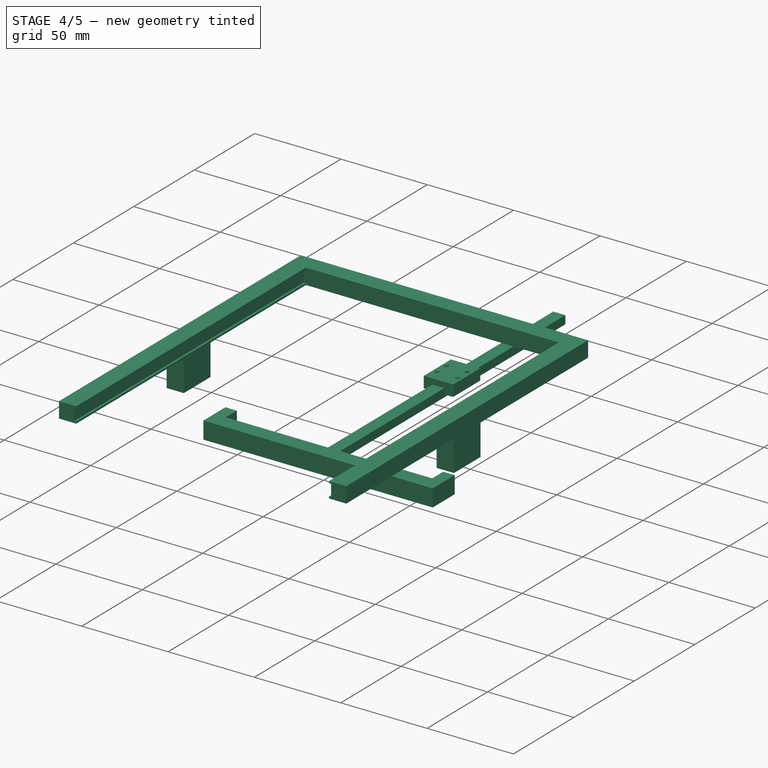
[diagram: stage 4 of 5 — iso view after this stage's code; geometry added in this stage tinted green]
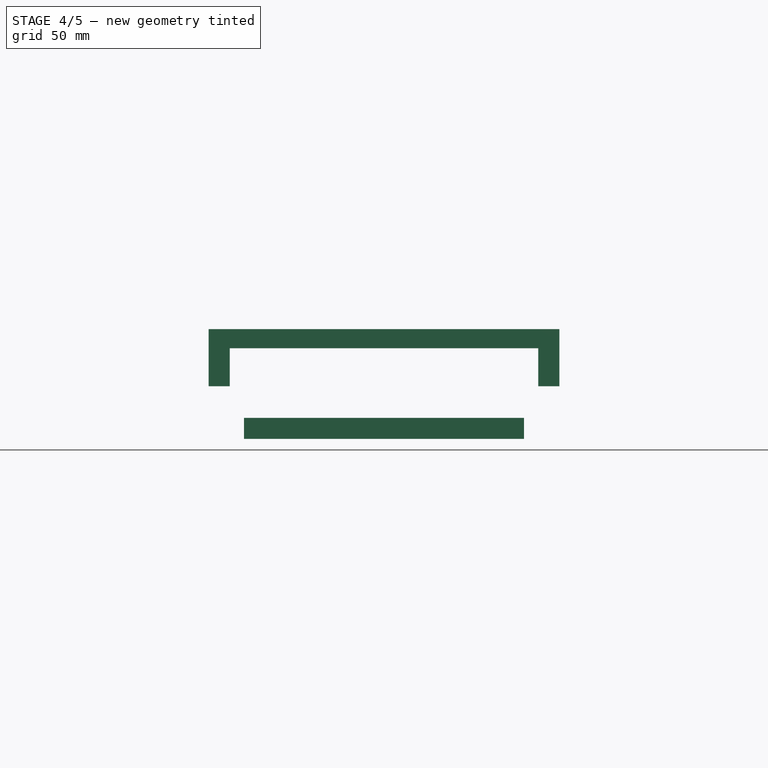
[diagram: stage 4 of 5 — front view after this stage's code; geometry added in this stage tinted green]
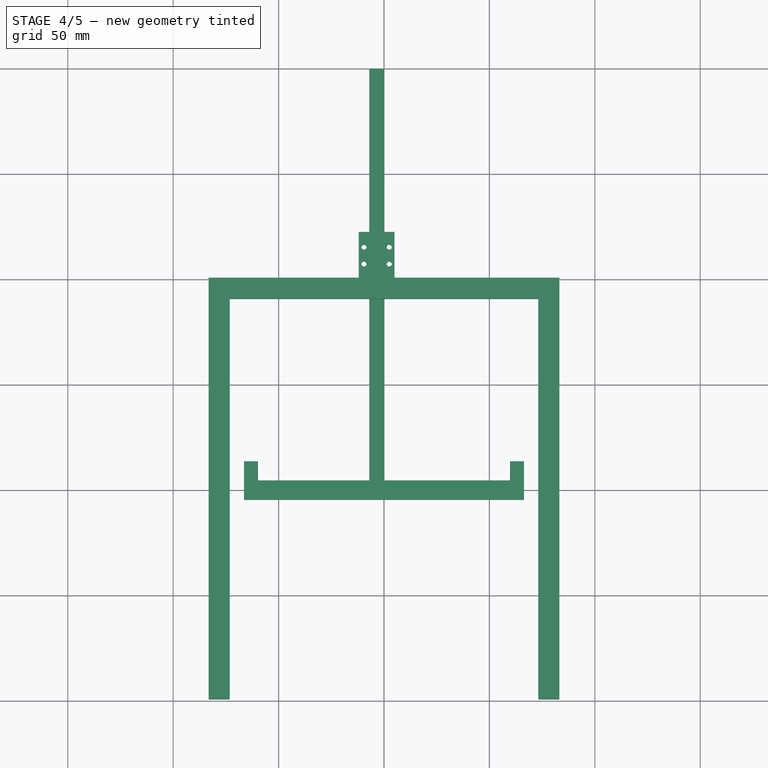
[diagram: stage 4 of 5 — top view after this stage's code; geometry added in this stage tinted green]
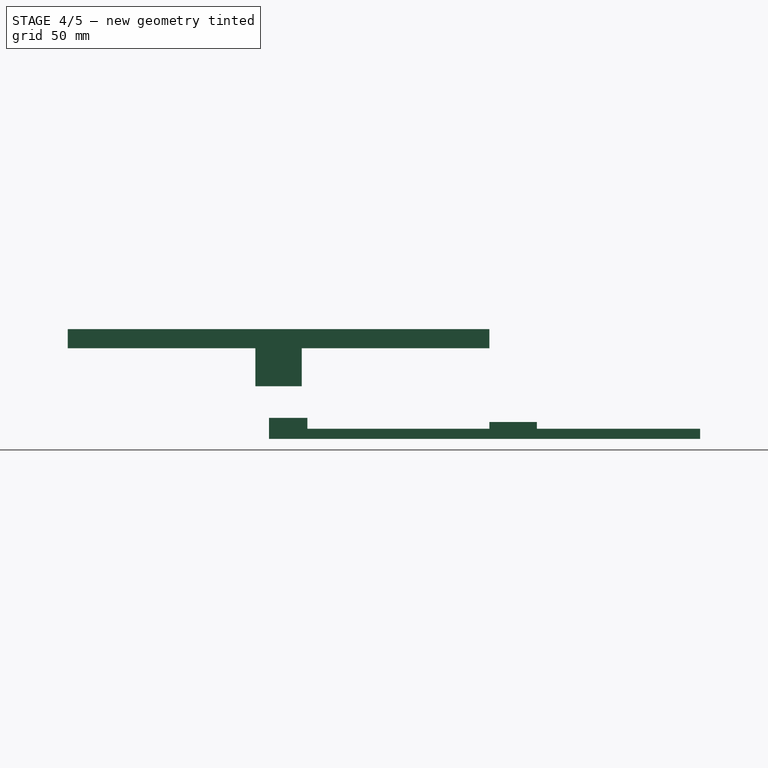
[diagram: stage 4 of 5 — right view after this stage's code; geometry added in this stage tinted green]
FEATURE [PartDesign::Body] Body001  label="Rail"
  Group = -> [Sketch002,Pad001,Sketch003,Pad002]
  Origin = -> Origin001
  Tip = -> Pad002
FEATURE [Sketcher::SketchObject] Sketch005
  FullyConstrained = true
  MapMode = 5
  Support = -> [XY_Plane002]
  expr: Constraints[8] = <<Properties>>.Rail_Body_Length
  expr: Constraints[9] = <<Properties>>.Rail_Width
  sketch-geometry (4):
    g0: LineSegment StartX=-7 StartY=200 StartZ=0 EndX=0 EndY=200 EndZ=0
    g1: LineSegment StartX=0 StartY=200 StartZ=0 EndX=0 EndY=0 EndZ=0
    g2: LineSegment StartX=0 StartY=0 StartZ=0 EndX=-7 EndY=0 EndZ=0
    g3: LineSegment StartX=-7 StartY=0 StartZ=0 EndX=-7 EndY=200 EndZ=0
  constraints (11):
    c: Coincident(g0,g1)
    c: Coincident(g1,g2)
    c: Coincident(g2,g3)
    c: Coincident(g3,g0)
    c: Horizontal(g0)
    c: Horizontal(g2)
    c: Vertical(g1)
    c: Vertical(g3)
    c: DistanceY(g1,g1) = 200
    c: DistanceX(g2,g2) = 7
    c: Coincident(g1,g-1)
FEATURE [PartDesign::Pad] Pad003
  Direction = (1,1,1)
  Length = 4.8
  Length2 = 100
  Profile = -> Sketch005
  Type = 0
  expr: Length = <<Properties>>.Rail_Height
FEATURE [PartDesign::Body] Body  label="RailHolder"
  Group = -> [Sketch,Pad,Sketch006,Pad005]
  Origin = -> Origin
  Tip = -> Pad005
FEATURE [Sketcher::SketchObject] Sketch007
  FullyConstrained = true
  MapMode = 5
  Support = -> [XY_Plane003]
  expr: Constraints[8] = <<Properties>>.Rail_Body_Length
  expr: Constraints[9] = <<Properties>>.Rail_Width
  sketch-geometry (4):
    g0: LineSegment StartX=-7 StartY=200 StartZ=0 EndX=0 EndY=200 EndZ=0
    g1: LineSegment StartX=0 StartY=200 StartZ=0 EndX=0 EndY=0 EndZ=0
    g2: LineSegment StartX=0 StartY=0 StartZ=0 EndX=-7 EndY=0 EndZ=0
    g3: LineSegment StartX=-7 StartY=0 StartZ=0 EndX=-7 EndY=200 EndZ=0
  constraints (11):
    c: Coincident(g0,g1)
    c: Coincident(g1,g2)
    c: Coincident(g2,g3)
    c: Coincident(g3,g0)
    c: Horizontal(g0)
    c: Horizontal(g2)
    c: Vertical(g1)
    c: Vertical(g3)
    c: DistanceY(g1,g1) = 200
    c: DistanceX(g2,g2) = 7
    c: Coincident(g1,g-1)
FEATURE [PartDesign::Pad] Pad006
  Direction = (1,1,1)
  Length = 4.8
  Length2 = 100
  Profile = -> Sketch007
  Type = 0
  expr: Length = <<Properties>>.Rail_Height
FEATURE [Sketcher::SketchObject] Sketch008
  AttachmentOffset = pos=(0,0,-3.3) rot=(0,0,1;0rad)
  ExternalGeometry = -> [Pad006]
  FullyConstrained = true
  MapMode = 5
  Placement = pos=(0,0,1.5) rot=(0,0,1;0rad)
  Support = -> [Pad006]
  expr: Constraints[8] = <<Properties>>.Head_Offset
  expr: Constraints[16] = <<Properties>>.Rail_Screw_Body_Diameter / 2
  expr: Constraints[9] = <<Properties>>.Rail_Head_Width
  expr: Constraints[17] = <<Properties>>.Rail_Screw_Body_Diameter / 2
  expr: Constraints[22] = <<Properties>>.Rail_Head_Screw_Length_Distance
  expr: Constraints[10] = <<Properties>>.Rail_Head_Length
  expr: Constraints[18] = <<Properties>>.Rail_Screw_Body_Diameter / 2
  expr: Constraints[19] = <<Properties>>.Rail_Screw_Body_Diameter / 2
  expr: Constraints[20] = <<Properties>>.Rail_Head_Screw_Width_Distance
  expr: .AttachmentOffset.Base.z = -<<Properties>>.Rail_Height + 1.5
  sketch-geometry (13):
    g0: LineSegment StartX=-12 StartY=122.5 StartZ=0 EndX=5 EndY=122.5 EndZ=0
    g1: LineSegment StartX=5 StartY=122.5 StartZ=0 EndX=5 EndY=100 EndZ=0
    g2: LineSegment StartX=5 StartY=100 StartZ=0 EndX=-12 EndY=100 EndZ=0
    g3: LineSegment StartX=-12 StartY=100 StartZ=0 EndX=-12 EndY=122.5 EndZ=0
    g4: Circle CenterX=-9.5 CenterY=115.25 CenterZ=0 NormalX=0 NormalY=0 NormalZ=1 AngleXU=0 Radius=1.2
    g5: Circle CenterX=2.5 CenterY=115.25 CenterZ=0 NormalX=0 NormalY=0 NormalZ=1 AngleXU=0 Radius=1.2
    g6: Circle CenterX=2.5 CenterY=107.25 CenterZ=0 NormalX=0 NormalY=0 NormalZ=1 AngleXU=0 Radius=1.2
    g7: Circle CenterX=-9.5 CenterY=107.25 CenterZ=0 NormalX=0 NormalY=0 NormalZ=1 AngleXU=0 Radius=1.2
    g8: LineSegment StartX=-3.5 StartY=122.5 StartZ=0 EndX=-3.5 EndY=100 EndZ=0
    g9: GeomPoint X=-3.5 Y=0 Z=0
    g10: GeomPoint X=-3.5 Y=111.25 Z=0
    g11: GeomPoint X=-3.5 Y=115.25 Z=0
    g12: GeomPoint X=-3.5 Y=107.25 Z=0
  constraints (30):
    c: Coincident(g0,g1)
    c: Coincident(g1,g2)
    c: Coincident(g2,g3)
    c: Coincident(g3,g0)
    c: Horizontal(g0)
    c: Horizontal(g2)
    c: Vertical(g1)
    c: Vertical(g3)
    c: DistanceY(g-1,g1) = 100
    c: DistanceX(g2,g2) = 17
    c: DistanceY(g3,g3) = 22.5
    c: PointOnObject(g8,g2)
    c: Vertical(g8)
    c: Symmetric(g0,g0,g8)
    c: Symmetric(g6,g7,g8)
    c: Symmetric(g5,g4,g8)
    c: Radius(g5) = 1.2
    c: Radius(g4) = 1.2
    c: Radius(g7) = 1.2
    c: Radius(g6) = 1.2
    c: DistanceX(g4,g5) = 12
    c: DistanceX(g6,g5) = 0
    c: DistanceY(g7,g4) = 8
    c: Symmetric(g-1,g-4,g9)
    c: DistanceX(g8,g9) = 0
    c: Symmetric(g8,g8,g10)
    c: PointOnObject(g11,g8)
    c: Symmetric(g11,g12,g10)
    c: DistanceY(g12,g6) = 0
    c: DistanceY(g11,g5) = 0
FEATURE [PartDesign::Pad] Pad007
  BaseFeature = -> Pad006
  Direction = (1,1,1)
  Length = 6.5
  Length2 = 100
  Profile = -> Sketch008
  Type = 0
  expr: Length = <<Properties>>.Rail_Head_Height
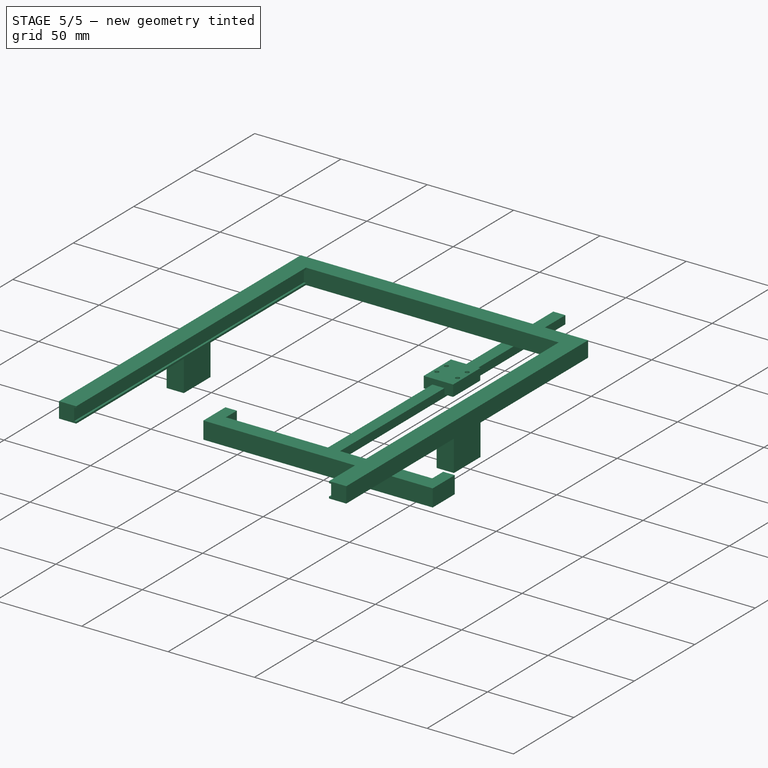
[diagram: stage 5 of 5 — iso view after this stage's code; geometry added in this stage tinted green]
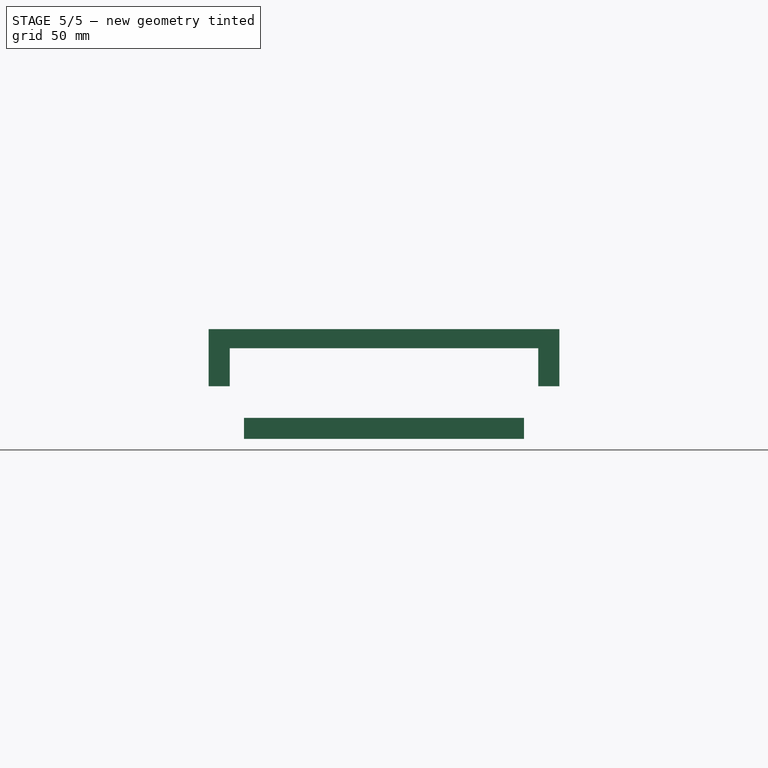
[diagram: stage 5 of 5 — front view after this stage's code; geometry added in this stage tinted green]
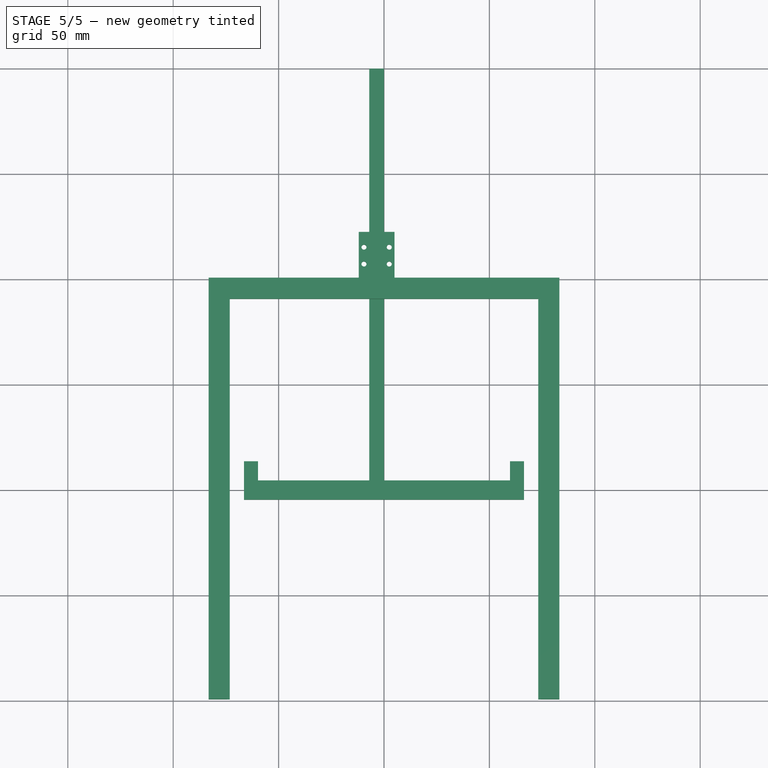
[diagram: stage 5 of 5 — top view after this stage's code; geometry added in this stage tinted green]
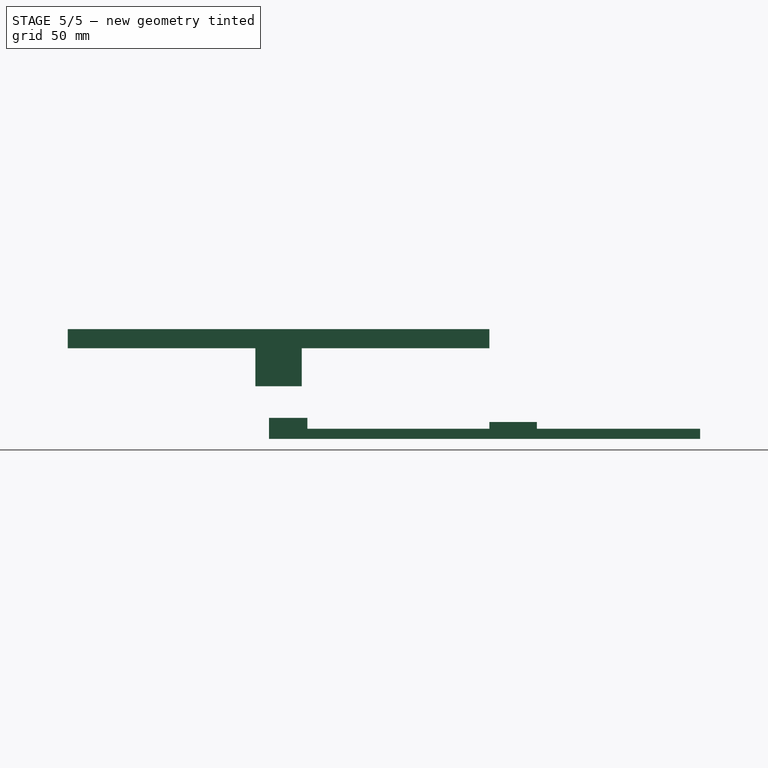
[diagram: stage 5 of 5 — right view after this stage's code; geometry added in this stage tinted green]
FEATURE [Spreadsheet::Sheet] Spreadsheet  label="Properties"
  cells = A1=Everything in; B1=mm; C1=Notes; A3=Base_Depth; B3(Base_Depth)=200; A4=Base_Width; B4(Base_Width)=200; A5=Base_Height; B5(Base_Height)=200; A6=ScrewHeadDiameter; B6(ScrewHeadDiameter)=4.2; A7=ScrewBodyDiameter; B7(ScrewBodyDiameter)=2.4; A8=TotalRailHeight; B8(TotalRailHeight)=8; A9=SliderDepth; B9(SliderDepth)=17; A10=SliderScrewDistance; B10(SliderScrewDistance)=8; A11=SliderHeight; B11(SliderHeight)=22.5; A13=RailSupport; A14=RS_SHMin; B14(RS_SHMin)==ScrewHeadDiameter + 2; A15=RS_Thickness; B15(RS_Thickness)=10; A16=RS_FPDepth; B16(RS_FPDepth)=200; A17=RS_FPWidth; B17(RS_FPWidth)=200; A18=RS_FPHeight; B18(RS_FPHeight)=10; A19=RS_RailHolderDepth; B19(RS_RailHolderDepth)=20; A20=RS_Holding_Height; B20(RS_Holding_Height)==Rail_Screw_To_Screw_Distance * 1.1 * 2; A21=RS_V_Rail_Inlay; B21(RS_V_Rail_Inlay)==Rail_Head_To_Ground_Distance - 0.3; A26=Rail; B26=MGN7-C; A27=Rail_Body_Height; B27(Rail_Body_Height)=8; A28=Rail_Body_Width; B28(Rail_Body_Width)=17; A29=Rail_Body_Length; B29(Rail_Body_Length)=200; A30=Rail_Width; B30(Rail_Width)=7; A31=Rail_Height; B31(Rail_Height)=4.8; A32=Rail_Head_Height; B32(Rail_Head_Height)==8 - Rail_Head_To_Ground_Distance; C32=Hight above Rail; A33=Rail_Head_Length; B33(Rail_Head_Length)=22.5; C33=Length along rail; A34=Rail_Head_Width; B34(Rail_Head_Width)=17; C34=Width along rail; A35=Rail_Head_Screw_Length_Distance; B35(Rail_Head_Screw_Length_Distance)=8; A36=Rail_Head_Screw_Width_Distance; B36(Rail_Head_Screw_Width_Distance)=12; A37=Rail_Screw_Head_Diameter; B37(Rail_Screw_Head_Diameter)=4.2; A38=Rail_Screw_Body_Diameter; B38(Rail_Screw_Body_Diameter)=2.4; A39=Head_Offset; B39(Head_Offset)==Rail_Body_Length / 2; A40=Rail_Head_To_Ground_Distance; B40(Rail_Head_To_Ground_Distance)=1.5; A41=Rail_Screw_To_Screw_Distance; B41(Rail_Screw_To_Screw_Distance)=15; A44=Sled; C44=Width,Height, Depth from the normal view; A45=Sled_V_Rail_Connector_Height; B45(Sled_V_Rail_Connector_Height)==Rail_Head_Screw_Length_Distance + 10; A46=Sled_V_Rail_Connector_Width; B46(Sled_V_Rail_Connector_Width)=5; A47=Sled_V_Rail_Connector_Depth; B47(Sled_V_Rail_Connector_Depth)==Rail_Head_Screw_Width_Distance + 10; A48=Sled_Base_Depth; B48(Sled_Base_Depth)=200; A49=Sled_Base_Height; B49(Sled_Base_Height)=10; A50=Sled_Base_Width; B50(Sled_Base_Width)=0; C50=Determined by other factors; A51=Sled_Thickness; B51(Sled_Thickness)=10; A52=Sled_Thickness_Height; B52(Sled_Thickness_Height)==Rail_Width * 1.3; A53=Sled_Depth_Rail_Inlay; B53(Sled_Depth_Rail_Inlay)==RS_V_Rail_Inlay; A56=RailHolder; A57=RailHolder_Depth; B57(RailHolder_Depth)==Sled_Thickness_Height; A58=RailHolder_Width; B58(RailHolder_Width)==RS_FPWidth - RS_Thickness * 4 - Rail_Body_Height * 2 - Rail_Body_Height * 2 + Sled_Depth_Rail_Inlay * 2 + RS_V_Rail_Inlay * 2; A59=RailHolder_Height; B59(RailHolder_Height)==Sled_Thickness
FEATURE [Sketcher::SketchObject] Sketch002
  FullyConstrained = true
  MapMode = 5
  Support = -> [XY_Plane001]
  expr: Constraints[9] = <<Properties>>.Rail_Width
  expr: Constraints[8] = <<Properties>>.Rail_Body_Length
  sketch-geometry (4):
    g0: LineSegment StartX=-7 StartY=200 StartZ=0 EndX=0 EndY=200 EndZ=0
    g1: LineSegment StartX=0 StartY=200 StartZ=0 EndX=0 EndY=0 EndZ=0
    g2: LineSegment StartX=0 StartY=0 StartZ=0 EndX=-7 EndY=0 EndZ=0
    g3: LineSegment StartX=-7 StartY=0 StartZ=0 EndX=-7 EndY=200 EndZ=0
  constraints (11):
    c: Coincident(g0,g1)
    c: Coincident(g1,g2)
    c: Coincident(g2,g3)
    c: Coincident(g3,g0)
    c: Horizontal(g0)
    c: Horizontal(g2)
    c: Vertical(g1)
    c: Vertical(g3)
    c: DistanceY(g1,g1) = 200
    c: DistanceX(g2,g2) = 7
    c: Coincident(g1,g-1)
FEATURE [PartDesign::Pad] Pad001
  Direction = (1,1,1)
  Length = 4.8
  Length2 = 100
  Profile = -> Sketch002
  Type = 0
  expr: Length = <<Properties>>.Rail_Height
FEATURE [Sketcher::SketchObject] Sketch003
  AttachmentOffset = pos=(0,0,-3.3) rot=(0,0,1;0rad)
  ExternalGeometry = -> [Pad001]
  FullyConstrained = true
  MapMode = 5
  Placement = pos=(0,0,1.5) rot=(0,0,1;0rad)
  Support = -> [Pad001]
  expr: .AttachmentOffset.Base.z = -<<Properties>>.Rail_Height + 1.5
  expr: Constraints[20] = <<Properties>>.Rail_Head_Screw_Width_Distance
  expr: Constraints[19] = <<Properties>>.Rail_Screw_Body_Diameter / 2
  expr: Constraints[18] = <<Properties>>.Rail_Screw_Body_Diameter / 2
  expr: Constraints[10] = <<Properties>>.Rail_Head_Length
  expr: Constraints[22] = <<Properties>>.Rail_Head_Screw_Length_Distance
  expr: Constraints[17] = <<Properties>>.Rail_Screw_Body_Diameter / 2
  expr: Constraints[9] = <<Properties>>.Rail_Head_Width
  expr: Constraints[16] = <<Properties>>.Rail_Screw_Body_Diameter / 2
  expr: Constraints[8] = <<Properties>>.Head_Offset
  sketch-geometry (13):
    g0: LineSegment StartX=-12 StartY=122.5 StartZ=0 EndX=5 EndY=122.5 EndZ=0
    g1: LineSegment StartX=5 StartY=122.5 StartZ=0 EndX=5 EndY=100 EndZ=0
    g2: LineSegment StartX=5 StartY=100 StartZ=0 EndX=-12 EndY=100 EndZ=0
    g3: LineSegment StartX=-12 StartY=100 StartZ=0 EndX=-12 EndY=122.5 EndZ=0
    g4: Circle CenterX=-9.5 CenterY=115.25 CenterZ=0 NormalX=0 NormalY=0 NormalZ=1 AngleXU=0 Radius=1.2
    g5: Circle CenterX=2.5 CenterY=115.25 CenterZ=0 NormalX=0 NormalY=0 NormalZ=1 AngleXU=0 Radius=1.2
    g6: Circle CenterX=2.5 CenterY=107.25 CenterZ=0 NormalX=0 NormalY=0 NormalZ=1 AngleXU=0 Radius=1.2
    g7: Circle CenterX=-9.5 CenterY=107.25 CenterZ=0 NormalX=0 NormalY=0 NormalZ=1 AngleXU=0 Radius=1.2
    g8: LineSegment StartX=-3.5 StartY=122.5 StartZ=0 EndX=-3.5 EndY=100 EndZ=0
    g9: GeomPoint X=-3.5 Y=0 Z=0
    g10: GeomPoint X=-3.5 Y=111.25 Z=0
    g11: GeomPoint X=-3.5 Y=115.25 Z=0
    g12: GeomPoint X=-3.5 Y=107.25 Z=0
  constraints (30):
    c: Coincident(g0,g1)
    c: Coincident(g1,g2)
    c: Coincident(g2,g3)
    c: Coincident(g3,g0)
    c: Horizontal(g0)
    c: Horizontal(g2)
    c: Vertical(g1)
    c: Vertical(g3)
    c: DistanceY(g-1,g1) = 100
    c: DistanceX(g2,g2) = 17
    c: DistanceY(g3,g3) = 22.5
    c: PointOnObject(g8,g2)
    c: Vertical(g8)
    c: Symmetric(g0,g0,g8)
    c: Symmetric(g6,g7,g8)
    c: Symmetric(g5,g4,g8)
    c: Radius(g5) = 1.2
    c: Radius(g4) = 1.2
    c: Radius(g7) = 1.2
    c: Radius(g6) = 1.2
    c: DistanceX(g4,g5) = 12
    c: DistanceX(g6,g5) = 0
    c: DistanceY(g7,g4) = 8
    c: Symmetric(g-1,g-4,g9)
    c: DistanceX(g8,g9) = 0
    c: Symmetric(g8,g8,g10)
    c: PointOnObject(g11,g8)
    c: Symmetric(g11,g12,g10)
    c: DistanceY(g12,g6) = 0
    c: DistanceY(g11,g5) = 0
FEATURE [PartDesign::Pad] Pad002
  BaseFeature = -> Pad001
  Direction = (1,1,1)
  Length = 6.5
  Length2 = 100
  Profile = -> Sketch003
  Type = 0
  expr: Length = <<Properties>>.Rail_Head_Height
FEATURE [Sketcher::SketchObject] Sketch004
  AttachmentOffset = pos=(0,0,-3.3) rot=(0,0,1;0rad)
  ExternalGeometry = -> [Pad003]
  FullyConstrained = true
  MapMode = 5
  Placement = pos=(0,0,1.5) rot=(0,0,1;0rad)
  Support = -> [Pad003]
  expr: Constraints[8] = <<Properties>>.Head_Offset
  expr: Constraints[16] = <<Properties>>.Rail_Screw_Body_Diameter / 2
  expr: Constraints[9] = <<Properties>>.Rail_Head_Width
  expr: Constraints[17] = <<Properties>>.Rail_Screw_Body_Diameter / 2
  expr: Constraints[22] = <<Properties>>.Rail_Head_Screw_Length_Distance
  expr: Constraints[10] = <<Properties>>.Rail_Head_Length
  expr: Constraints[18] = <<Properties>>.Rail_Screw_Body_Diameter / 2
  expr: Constraints[19] = <<Properties>>.Rail_Screw_Body_Diameter / 2
  expr: Constraints[20] = <<Properties>>.Rail_Head_Screw_Width_Distance
  expr: .AttachmentOffset.Base.z = -<<Properties>>.Rail_Height + 1.5
  sketch-geometry (13):
    g0: LineSegment StartX=-12 StartY=122.5 StartZ=0 EndX=5 EndY=122.5 EndZ=0
    g1: LineSegment StartX=5 StartY=122.5 StartZ=0 EndX=5 EndY=100 EndZ=0
    g2: LineSegment StartX=5 StartY=100 StartZ=0 EndX=-12 EndY=100 EndZ=0
    g3: LineSegment StartX=-12 StartY=100 StartZ=0 EndX=-12 EndY=122.5 EndZ=0
    g4: Circle CenterX=-9.5 CenterY=115.25 CenterZ=0 NormalX=0 NormalY=0 NormalZ=1 AngleXU=0 Radius=1.2
    g5: Circle CenterX=2.5 CenterY=115.25 CenterZ=0 NormalX=0 NormalY=0 NormalZ=1 AngleXU=0 Radius=1.2
    g6: Circle CenterX=2.5 CenterY=107.25 CenterZ=0 NormalX=0 NormalY=0 NormalZ=1 AngleXU=0 Radius=1.2
    g7: Circle CenterX=-9.5 CenterY=107.25 CenterZ=0 NormalX=0 NormalY=0 NormalZ=1 AngleXU=0 Radius=1.2
    g8: LineSegment StartX=-3.5 StartY=122.5 StartZ=0 EndX=-3.5 EndY=100 EndZ=0
    g9: GeomPoint X=-3.5 Y=0 Z=0
    g10: GeomPoint X=-3.5 Y=111.25 Z=0
    g11: GeomPoint X=-3.5 Y=115.25 Z=0
    g12: GeomPoint X=-3.5 Y=107.25 Z=0
  constraints (30):
    c: Coincident(g0,g1)
    c: Coincident(g1,g2)
    c: Coincident(g2,g3)
    c: Coincident(g3,g0)
    c: Horizontal(g0)
    c: Horizontal(g2)
    c: Vertical(g1)
    c: Vertical(g3)
    c: DistanceY(g-1,g1) = 100
    c: DistanceX(g2,g2) = 17
    c: DistanceY(g3,g3) = 22.5
    c: PointOnObject(g8,g2)
    c: Vertical(g8)
    c: Symmetric(g0,g0,g8)
    c: Symmetric(g6,g7,g8)
    c: Symmetric(g5,g4,g8)
    c: Radius(g5) = 1.2
    c: Radius(g4) = 1.2
    c: Radius(g7) = 1.2
    c: Radius(g6) = 1.2
    c: DistanceX(g4,g5) = 12
    c: DistanceX(g6,g5) = 0
    c: DistanceY(g7,g4) = 8
    c: Symmetric(g-1,g-4,g9)
    c: DistanceX(g8,g9) = 0
    c: Symmetric(g8,g8,g10)
    c: PointOnObject(g11,g8)
    c: Symmetric(g11,g12,g10)
    c: DistanceY(g12,g6) = 0
    c: DistanceY(g11,g5) = 0
FEATURE [PartDesign::Pad] Pad004
  BaseFeature = -> Pad003
  Direction = (1,1,1)
  Length = 6.5
  Length2 = 100
  Profile = -> Sketch004
  Type = 0
  expr: Length = <<Properties>>.Rail_Head_Height
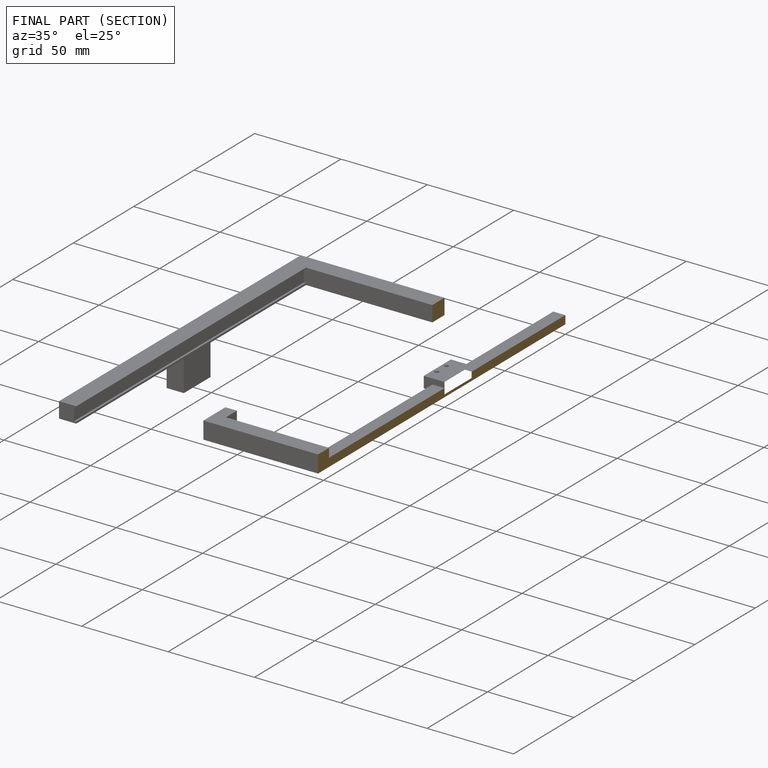
[diagram: finished part — half-section view (interior)]
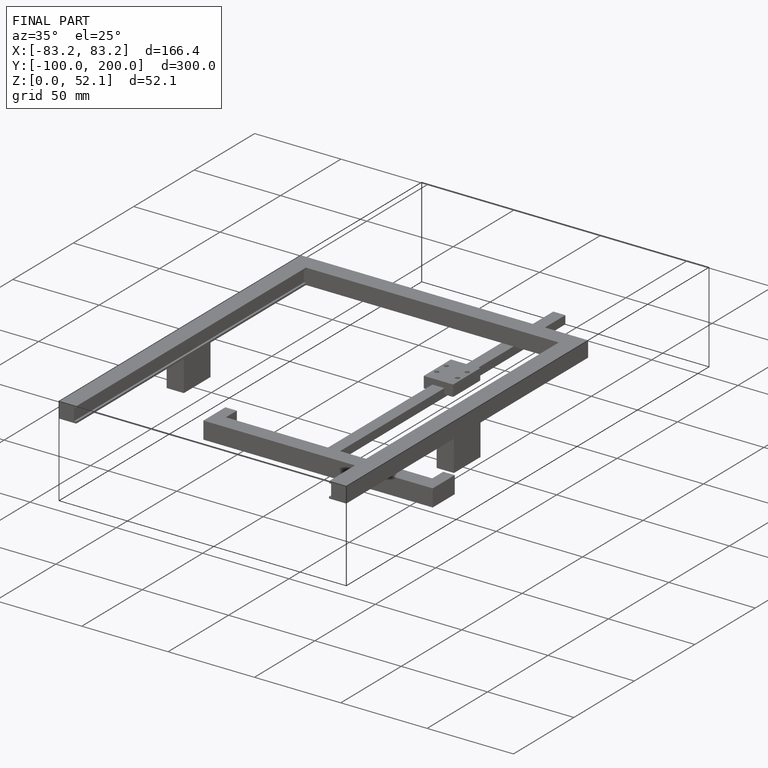
[diagram: finished part — iso view with bounding-box wireframe]
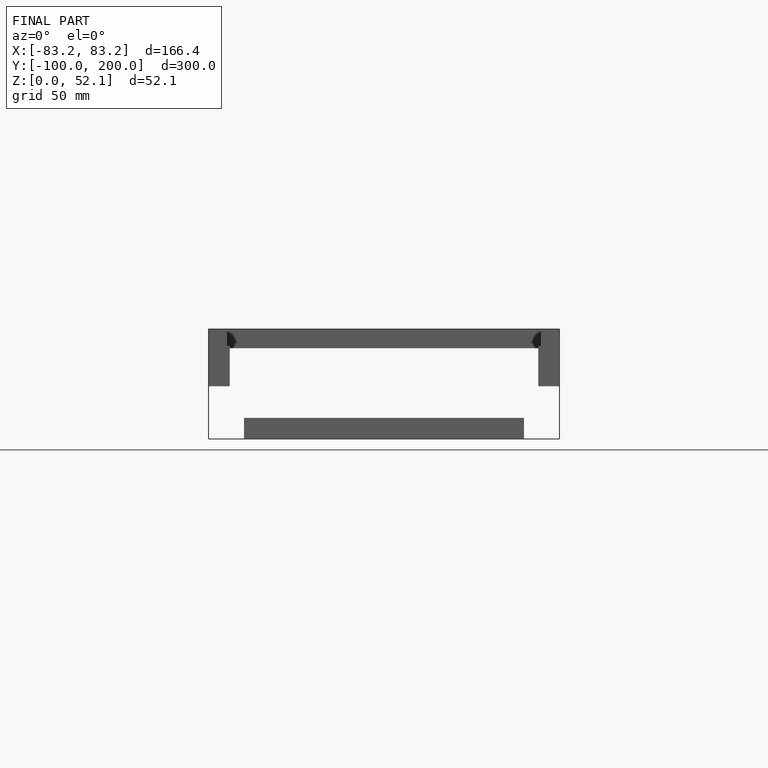
[diagram: finished part — front view with bounding-box wireframe]
